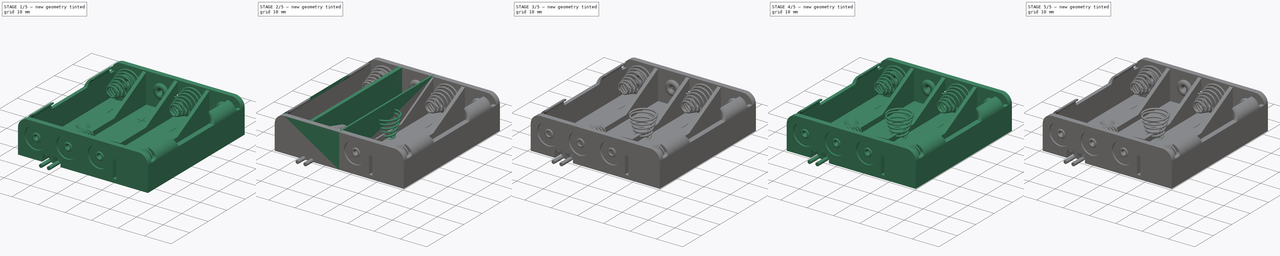
[diagram: build sequence overview — one tinted view per stage of 5, left to right]
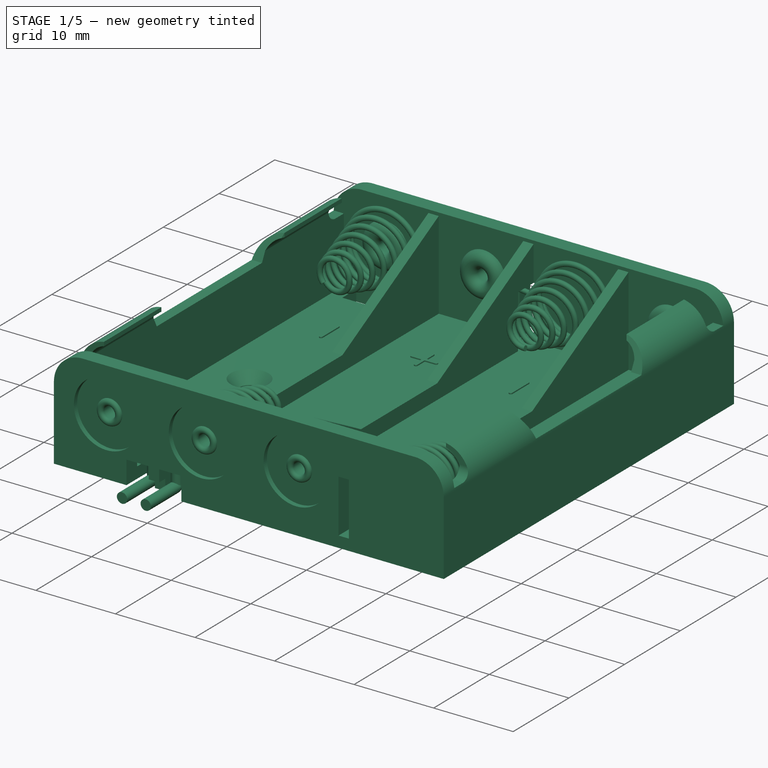
[diagram: stage 1 of 5 — iso view after this stage's code; geometry added in this stage tinted green]
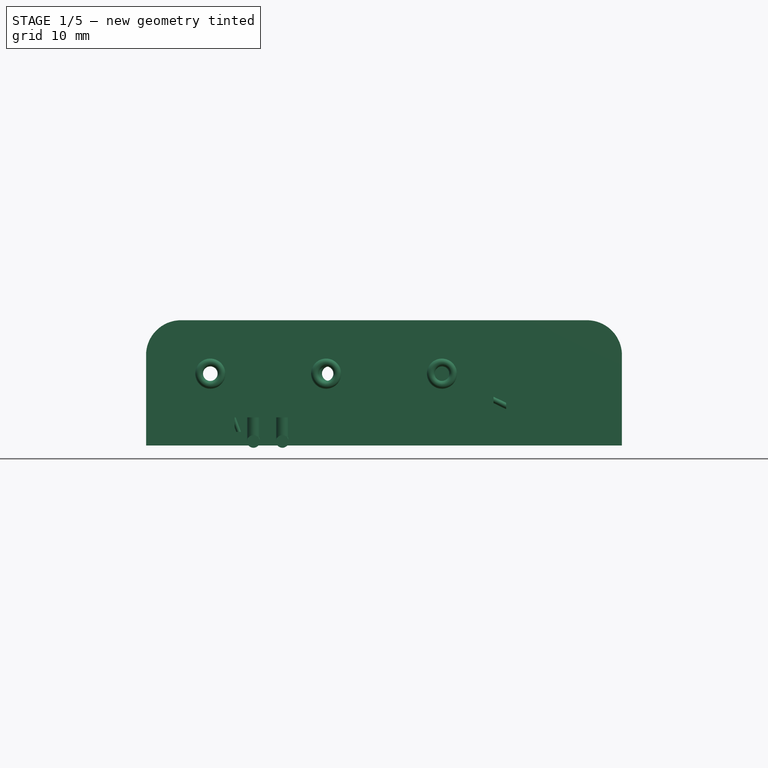
[diagram: stage 1 of 5 — front view after this stage's code; geometry added in this stage tinted green]
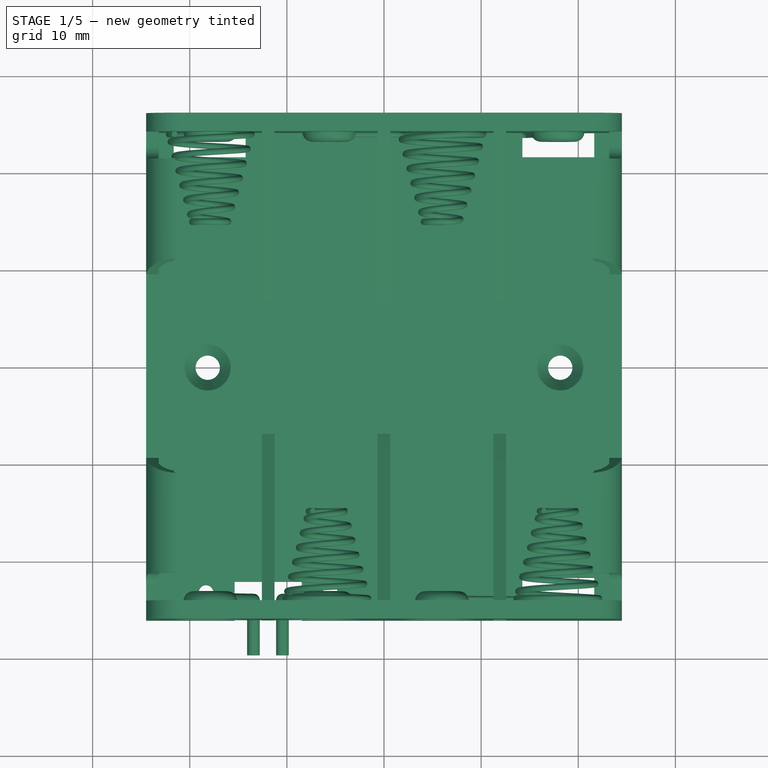
[diagram: stage 1 of 5 — top view after this stage's code; geometry added in this stage tinted green]
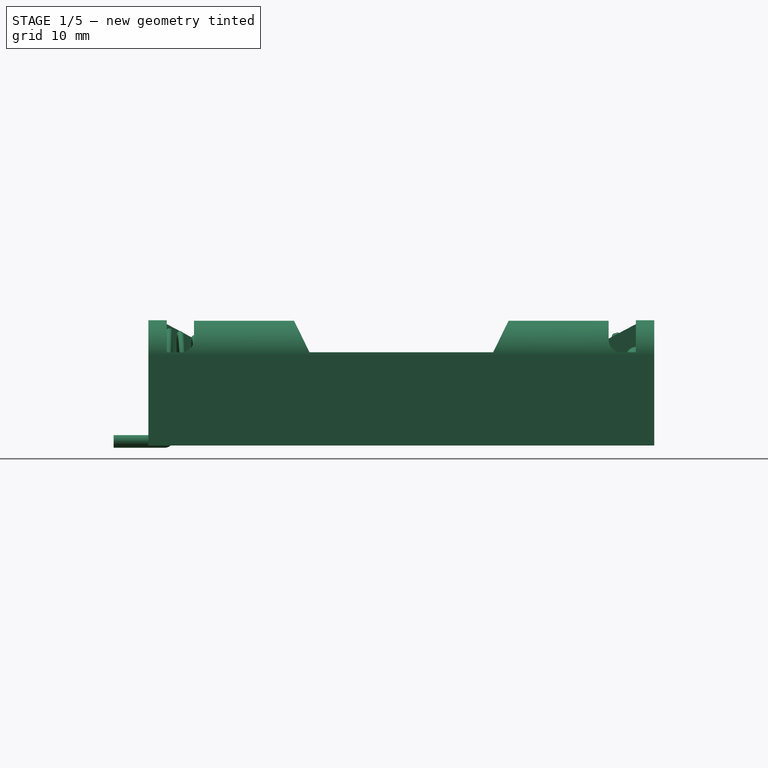
[diagram: stage 1 of 5 — right view after this stage's code; geometry added in this stage tinted green]
FCSTD DOCUMENT  (FreeCAD 0.14R3702 (Git))
Label: battery-holder-4-AAA
License: CC-BY 3.0
LicenseURL: http://creativecommons.org/licenses/by/3.0/
objects: Sketcher::SketchObject×39, Part::Feature×33, PartDesign::Pocket×19, App::DocumentObjectGroup×6, Part::Sweep×6, PartDesign::Pad×4, Part::MultiFuse×4, Part::Compound×4, Part::Mirroring×2, PartDesign::Revolution×2, Part::Loft×1, Part::Cut×1
note: 140 computed .brp shape members not serialized (recipe doc carries the construction recipe); baked Part::Feature solids carry a one-line shape summary decoded from their .brp

FEATURE [App::DocumentObjectGroup] Group002  label="contacts"
  Group = -> [Revolution,Revolution001001001001003]
FEATURE [Part::Feature] Revolution001001001001003001  label="front-contact-1"
  Placement = pos=(-17.8875,-24.15,7.4) rot=(0,0,1;0rad)
  shape: bbox 5.953 x 1.71 x 5.953 mm, 2 faces (baked)
FEATURE [Part::Compound] Compound  label="back-contacts"
  Links = -> [Revolution001,Revolution001001,Revolution001001001,Revolution001001001001,Revolution001001001001001,Revolution001001001001002]
FEATURE [Part::Feature] Revolution001001001001003001001  label="front-contact-002"
  Placement = pos=(5.9625,-24.15,7.4) rot=(0,0,1;0rad)
  shape: bbox 5.953 x 1.71 x 5.953 mm, 2 faces (baked)
FEATURE [Part::Feature] Revolution001001001001003001002  label="front-contact-003"
  Placement = pos=(17.8875,24.15,7.4) rot=(1,0,0;3.14159rad)
  shape: bbox 5.953 x 1.71 x 5.953 mm, 2 faces (baked)
FEATURE [Part::Feature] Revolution001001001001003001003  label="front-contact-004"
  Placement = pos=(-5.6375,24.15,7.4) rot=(1,0,0;3.14159rad)
  shape: bbox 5.953 x 1.71 x 5.953 mm, 2 faces (baked)
FEATURE [Part::Feature] Revolution001001001001003001004  label="front-contact-005"
  Placement = pos=(-5.9625,-24.15,7.4) rot=(0,0,1;0rad)
  shape: bbox 5.953 x 1.71 x 5.953 mm, 2 faces (baked)
FEATURE [Part::Feature] Revolution001001001001003001003001  label="front-contact-006"
  Placement = pos=(-17.8875,24.15,7.4) rot=(1,0,0;3.14159rad)
  shape: bbox 5.953 x 1.71 x 5.953 mm, 2 faces (baked)
FEATURE [Part::Compound] Compound001  label="Front-contacts"
  Links = -> [Revolution001001001001003001,Revolution001001001001003001001,Revolution001001001001003001002,Revolution001001001001003001003,Revolution001001001001003001004,Revolution001001001001003001003001]
FEATURE [App::DocumentObjectGroup] Group004  label="spring-src"
  Group = -> [Wire,Sketch027,Sweep001]
FEATURE [Part::Feature] Sweep001001  label="spring-1"
  Placement = pos=(-17.9,14.9,7.5) rot=(-1,0,0;1.5708rad)
  shape: bbox 11.66 x 9.646 x 11.43 mm, 5 faces (baked)
FEATURE [Part::Feature] Sweep001001001  label="spring-2"
  Placement = pos=(5.95,14.9,7.5) rot=(-0.805306,-0.419215,-0.419215;1.78566rad)
  shape: bbox 11.92 x 9.646 x 11.4 mm, 5 faces (baked)
FEATURE [Part::Feature] Sweep001001002  label="spring-3"
  Placement = pos=(-5.9,-14.9,7.5) rot=(1,0,0;1.5708rad)
  shape: bbox 11.66 x 9.646 x 11.43 mm, 5 faces (baked)
FEATURE [Part::Feature] Sweep001001002001  label="spring-4"
  Placement = pos=(17.9,-14.9,7.5) rot=(1,0,0;1.5708rad)
  shape: bbox 11.66 x 9.646 x 11.43 mm, 5 faces (baked)
FEATURE [Part::Compound] Compound002  label="Springs"
  Links = -> [Sweep001001,Sweep001001002,Sweep001001001,Sweep001001002001]
FEATURE [Sketcher::SketchObject] Sketch033  label="wire-3-path-sketch"
  Placement = pos=(0.25,23.9,0) rot=(1,0,0;1.5708rad)
  sketch-geometry (3):
    g0: LineSegment StartX=2.17808 StartY=5.14987 StartZ=0 EndX=1.54283 EndY=6.29504 EndZ=0
    g1: ArcOfCircle CenterX=0.555906 CenterY=5.74757 CenterZ=0 NormalX=0 NormalY=0 NormalZ=1 Radius=1.1286 StartAngle=0.50646 EndAngle=1.46079
    g2: LineSegment StartX=0.679808 StartY=6.86935 StartZ=0 EndX=-3.85922 EndY=7.37069 EndZ=0
  constraints (4):
    c: Coincident(g2,g1)
    c: Tangent(g2,g1)
    c: Coincident(g1,g0)
    c: Tangent(g1,g0)
FEATURE [Sketcher::SketchObject] Sketch034  label="wire-3-section-sketch"
  Placement = pos=(5.94756,14.9,7.50523) rot=(-1.3e-05,-1,-4e-06;0.436335rad)
  Support = -> Sweep001001001 [Face4]
  sketch-geometry (1):
    g0: Circle CenterX=-4.24157 CenterY=8.99933 CenterZ=0 NormalX=0 NormalY=0 NormalZ=1 Radius=0.3
  constraints (1):
    c: Radius(g0) = 0.3
FEATURE [Part::Sweep] Sweep001001002003  label="wire-3-final"
  Frenet = false
  Sections = -> [Sketch034]
  Solid = true
  Spine = -> Sketch033
  Transition = 1
FEATURE [Sketcher::SketchObject] Sketch035  label="black-wire-path-1-sketch"
  Placement = pos=(0,-24,0) rot=(1,0,0;1.5708rad)
  sketch-geometry (3):
    g0: LineSegment StartX=-7.8288 StartY=7.2478 StartZ=0 EndX=-10.1683 EndY=4.90829 EndZ=0
    g1: LineSegment StartX=-10.4614 StartY=4.20073 StartZ=0 EndX=-10.4614 EndY=0.819755 EndZ=0
    g2: ArcOfCircle CenterX=-9.46075 CenterY=4.20073 CenterZ=0 NormalX=0 NormalY=0 NormalZ=1 Radius=1.00063 StartAngle=2.35619 EndAngle=3.14159
  constraints (4):
    c: Vertical(g1)
    c: Angle(g0,g-1) = 2.35619
    c: Tangent(g0,g2)
    c: Tangent(g1,g2)
FEATURE [Sketcher::SketchObject] Sketch036  label="black-wire-path-2-sketch"
  Placement = pos=(-10.4614,-0.000383377,-0.0141385) rot=(0.57735,0.57735,0.57735;2.0944rad)
  sketch-geometry (3):
    g0: LineSegment StartX=-24.3996 StartY=0.433894 StartZ=0 EndX=-29.6174 EndY=0.433894 EndZ=0
    g1: ArcOfCircle CenterX=-24.3996 CenterY=0.833894 CenterZ=0 NormalX=0 NormalY=0 NormalZ=1 Radius=0.4 StartAngle=4.71239 EndAngle=6.28319
    g2: LineSegment [constr] StartX=-24.3996 StartY=0.833894 StartZ=0 EndX=-23.9996 EndY=0.833894 EndZ=0
  constraints (7):
    c: Horizontal(g0)
    c: Coincident(g1,g0)
    c: Coincident(g2,g1)
    c: Coincident(g2,g1)
    c: Horizontal(g2)
    c: Tangent(g1,g0)
    c: Radius(g1) = 0.4
FEATURE [Sketcher::SketchObject] Sketch037  label="black-wirte-section-1-sketch"
  Placement = pos=(-10.4614,-29.6178,0.419755) rot=(1,0,0;1.5708rad)
  sketch-geometry (1):
    g0: Circle CenterX=0 CenterY=0 CenterZ=0 NormalX=0 NormalY=0 NormalZ=1 Radius=0.65
  constraints (2):
    c: Coincident(g0,g-1)
    c: Radius(g0) = 0.65
FEATURE [Part::Sweep] Sweep001001002004  label="black-wire-1"
  Frenet = false
  Sections = -> [Sketch037]
  Solid = true
  Spine = -> Sketch036 [Edge2,Edge1]
  Transition = 1
FEATURE [Sketcher::SketchObject] Sketch038  label="back-wire-section-2-sketch"
  Placement = pos=(-10.4614,-24,0.819755) rot=(0,0,1;0rad)
  sketch-geometry (1):
    g0: Circle CenterX=0 CenterY=0 CenterZ=0 NormalX=0 NormalY=0 NormalZ=1 Radius=0.65
  constraints (2):
    c: Coincident(g0,g-1)
    c: Radius(g0) = 0.65
FEATURE [Part::Sweep] Sweep001001002005  label="black-wire-2"
  Frenet = false
  Sections = -> [Sketch038]
  Solid = true
  Spine = -> Sketch035
  Transition = 1
FEATURE [Part::MultiFuse] Fusion002002  label="black-wire-final"
  Shapes = -> [Sweep001001002004,Sweep001001002005]
FEATURE [Part::Mirroring] Part__Mirroring001  label="red-wire-final"
  Base = (0,0,0)
  Normal = (1,0,0)
  Placement = pos=(-23.9,0,0) rot=(0,0,1;0rad)
  Source = -> Fusion002002
FEATURE [App::DocumentObjectGroup] Group005  label="wires-src"
  Group = -> [Sketch029,Sweep,Sketch031,Sweep001001002002,Sketch033,Sweep001001002003,Sketch035,Sketch036,Sweep001001002004,Sweep001001002005,Fusion002002,Part__Mirroring001]
FEATURE [Part::Feature] Sweep001001002006  label="wire-1"
  Placement = pos=(0,-0.25,0) rot=(0,0,1;0rad)
  shape: bbox 33.95 x 0.5 x 5.982 mm, 7 faces (baked)
FEATURE [Part::Feature] Sweep001001002002001  label="wire-2"
  Placement = pos=(0.12,0.25,0) rot=(0,0,1;0rad)
  shape: bbox 7.17 x 0.6 x 3.202 mm, 5 faces (baked)
FEATURE [Part::Feature] Sweep001001002003001  label="wire-3"
  shape: bbox 6.355 x 0.6 x 2.637 mm, 5 faces (baked)
FEATURE [Part::Feature] Fusion002002001  label="black-wire"
  shape: bbox 3.878 x 6.268 x 7.938 mm, 12 faces, 3 solids (baked)
FEATURE [Part::Feature] Part__Mirroring001001  label="red-wire"
  Placement = pos=(-23.9,0,0) rot=(0,0,1;0rad)
  shape: bbox 3.878 x 6.268 x 7.938 mm, 12 faces, 3 solids (baked)
FEATURE [Part::Compound] Compound003
  Links = -> [Fusion002001,Compound,Compound001,Compound002,Sweep001001002006,Sweep001001002002001,Sweep001001002003001,Fusion002002001,Part__Mirroring001001]
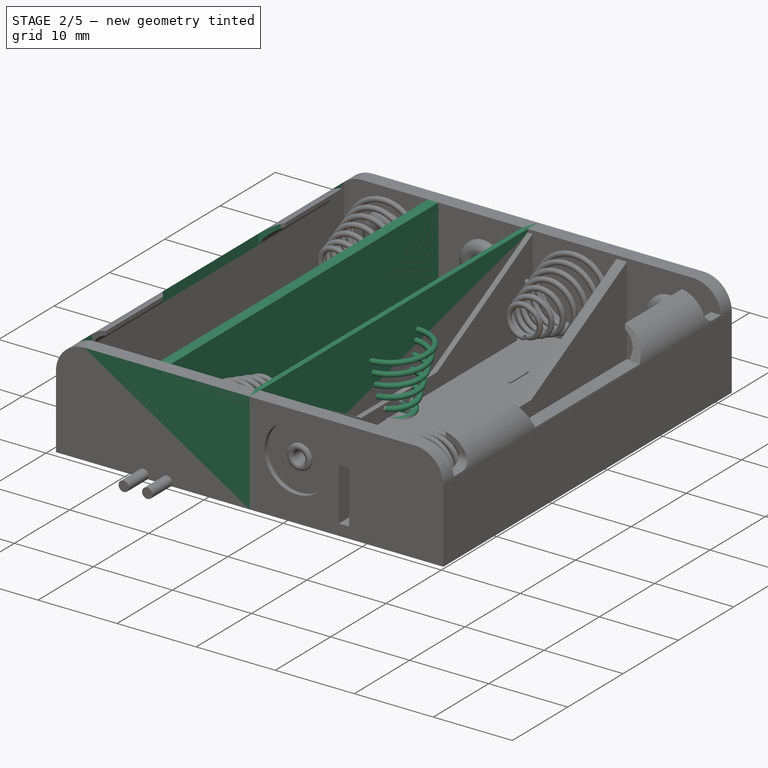
[diagram: stage 2 of 5 — iso view after this stage's code; geometry added in this stage tinted green]
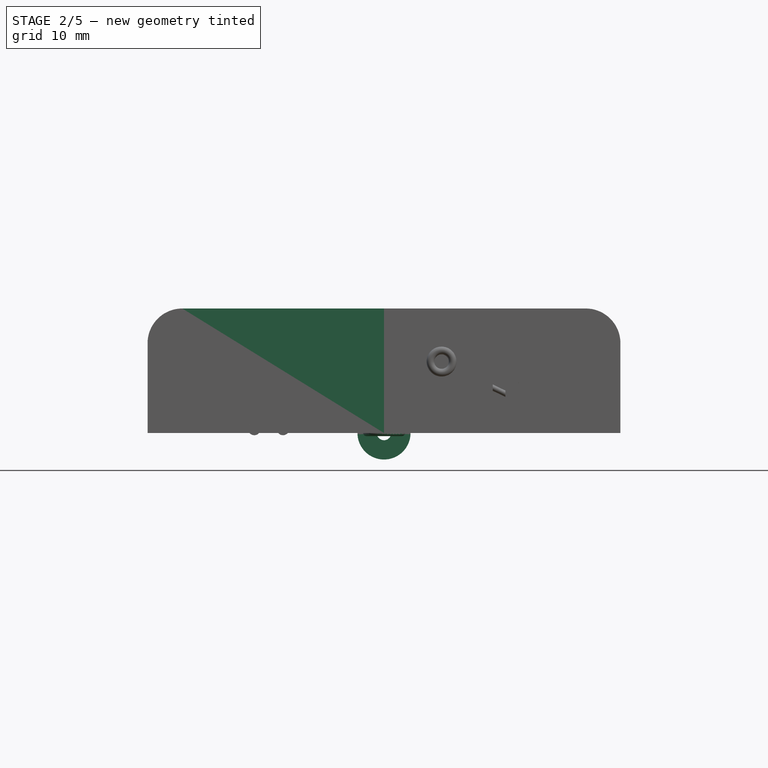
[diagram: stage 2 of 5 — front view after this stage's code; geometry added in this stage tinted green]
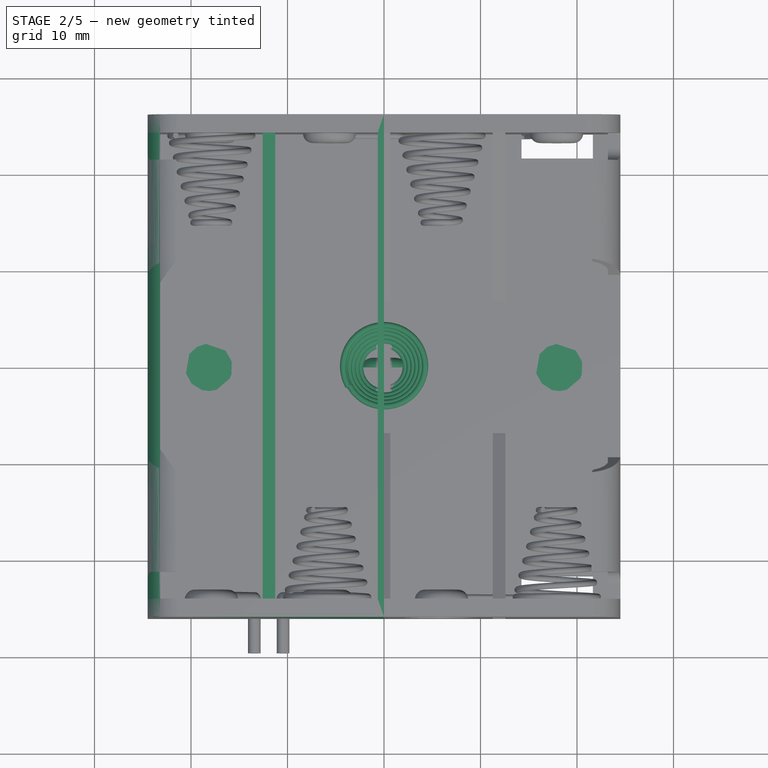
[diagram: stage 2 of 5 — top view after this stage's code; geometry added in this stage tinted green]
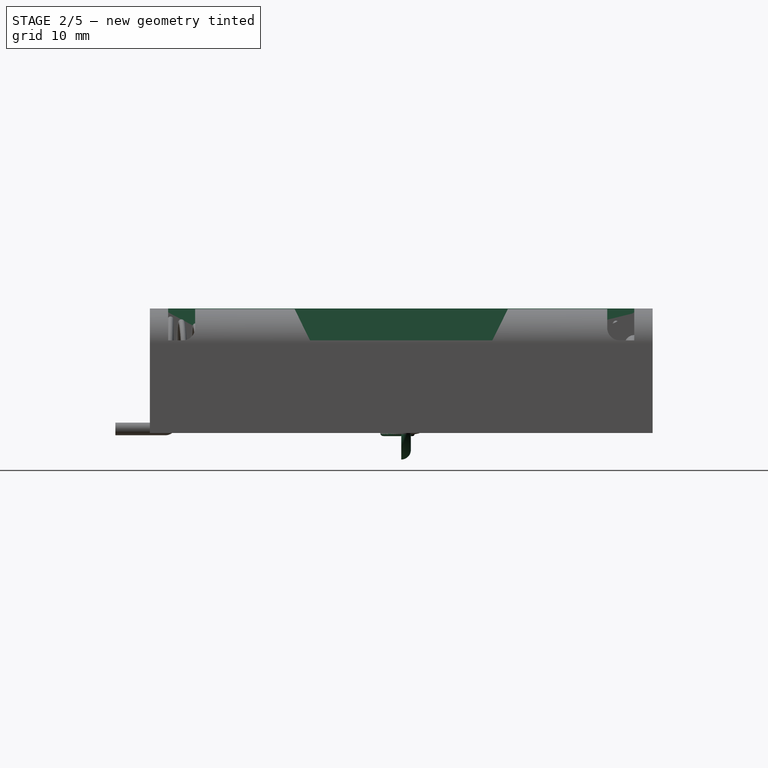
[diagram: stage 2 of 5 — right view after this stage's code; geometry added in this stage tinted green]
FEATURE [Sketcher::SketchObject] Sketch  label="pack-body-1-sketch"
  Placement = pos=(0,0,0) rot=(1,0,0;1.5708rad)
  sketch-geometry (5):
    g0: LineSegment StartX=-24.5 StartY=9.3 StartZ=0 EndX=-24.5 EndY=0 EndZ=0
    g1: LineSegment StartX=-24.5 StartY=0 StartZ=0 EndX=0 EndY=0 EndZ=0
    g2: LineSegment StartX=0 StartY=0 StartZ=0 EndX=0 EndY=12.9 EndZ=0
    g3: LineSegment StartX=0 StartY=12.9 StartZ=0 EndX=-20.9 EndY=12.9 EndZ=0
    g4: ArcOfCircle CenterX=-20.9 CenterY=9.3 CenterZ=0 NormalX=0 NormalY=0 NormalZ=1 Radius=3.6 StartAngle=1.5708 EndAngle=3.14159
  constraints (14):
    c: PointOnObject(g0,g-1)
    c: Vertical(g0)
    c: Coincident(g0,g1)
    c: Horizontal(g1)
    c: Coincident(g1,g2)
    c: Vertical(g2)
    c: Coincident(g2,g3)
    c: Horizontal(g3)
    c: Tangent(g0,g4)
    c: Tangent(g3,g4)
    c: Coincident(g1,g-1)
    c: DistanceX(g1) = 24.5
    c: DistanceY(g2) = 12.9
    c: Radius(g4) = 3.6
FEATURE [PartDesign::Pad] Pad  label="pack-body-1"
  Length = 52.1
  Length2 = 100
  Midplane = true
  Placement = pos=(0,0,0) rot=(1,0,0;1.5708rad)
  Sketch = -> Sketch
  Type = 0
FEATURE [Sketcher::SketchObject] Sketch001  label="pack-body-2-sketch"
  ExternalGeometry = -> [Pad]
  Placement = pos=(0,0,12.9) rot=(0,0,1;3.14159rad)
  Support = -> Pad [Face4]
  sketch-geometry (16):
    g0: LineSegment StartX=0.65 StartY=24.15 StartZ=0 EndX=11.275 EndY=24.15 EndZ=0
    g1: LineSegment StartX=11.275 StartY=24.15 StartZ=0 EndX=11.275 EndY=-24.15 EndZ=0
    g2: LineSegment StartX=11.275 StartY=-24.15 StartZ=0 EndX=0.65 EndY=-24.15 EndZ=0
    g3: LineSegment StartX=0.65 StartY=-24.15 StartZ=0 EndX=0.65 EndY=24.15 EndZ=0
    g4: LineSegment StartX=12.575 StartY=24.15 StartZ=0 EndX=23.2 EndY=24.15 EndZ=0
    g5: LineSegment StartX=23.2 StartY=24.15 StartZ=0 EndX=23.2 EndY=21.35 EndZ=0
    g6: LineSegment StartX=23.2 StartY=-24.15 StartZ=0 EndX=12.575 EndY=-24.15 EndZ=0
    g7: LineSegment StartX=12.575 StartY=-24.15 StartZ=0 EndX=12.575 EndY=24.15 EndZ=0
    g8: LineSegment StartX=23.2 StartY=21.35 StartZ=0 EndX=21.5 EndY=21.35 EndZ=0
    g9: LineSegment StartX=21.5 StartY=21.35 StartZ=0 EndX=21.5 EndY=11.05 EndZ=0
    g10: LineSegment StartX=21.5 StartY=11.05 StartZ=0 EndX=23.2 EndY=8.65 EndZ=0
    g11: LineSegment StartX=23.2 StartY=8.65 StartZ=0 EndX=23.2 EndY=-8.65 EndZ=0
    g12: LineSegment StartX=23.2 StartY=-21.35 StartZ=0 EndX=21.5 EndY=-21.35 EndZ=0
    g13: LineSegment StartX=21.5 StartY=-21.35 StartZ=0 EndX=21.5 EndY=-11.05 EndZ=0
    g14: LineSegment StartX=21.5 StartY=-11.05 StartZ=0 EndX=23.2 EndY=-8.65 EndZ=0
    g15: LineSegment StartX=23.2 StartY=-21.35 StartZ=0 EndX=23.2 EndY=-24.15 EndZ=0
  constraints (45):
    c: Coincident(g0,g1)
    c: Coincident(g1,g2)
    c: Coincident(g2,g3)
    c: Coincident(g3,g0)
    c: Horizontal(g0)
    c: Horizontal(g2)
    c: Vertical(g1)
    c: Vertical(g3)
    c: Coincident(g4,g5)
    c: Coincident(g15,g6)
    c: Coincident(g6,g7)
    c: Coincident(g7,g4)
    c: Horizontal(g4)
    c: Horizontal(g6)
    c: Vertical(g5)
    c: Vertical(g7)
    c: DistanceX(g-3,g0) = 0.65
    c: DistanceY(g-3,g0) = -1.9
    c: Symmetric(g0,g1,g-1)
    c: DistanceX(g4,g-4) = 1.3
    c: PointOnObject(g4,g0)
    c: Symmetric(g4,g6,g-1)
    c: Equal(g0,g4)
    c: DistanceX(g0,g4) = 1.3
    c: Horizontal(g8)
    c: Vertical(g9)
    c: Coincident(g9,g8)
    c: DistanceY(g9) = -10.3
    c: Coincident(g10,g9)
    c: Coincident(g5,g8)
    c: Coincident(g11,g10)
    c: Tangent(g5,g11)
    c: DistanceY(g5,g10) = -12.7
    c: DistanceX(g8,g5) = 1.7
    c: DistanceY(g4,g5) = -2.8
    c: Horizontal(g12)
    c: Coincident(g12,g13)
    c: Vertical(g13)
    c: Coincident(g13,g14)
    c: Coincident(g11,g14)
    c: Coincident(g15,g12)
    c: Tangent(g11,g15)
    c: Symmetric(g11,g10,g-1)
    c: Symmetric(g13,g9,g-1)
    c: Symmetric(g12,g8,g-1)
FEATURE [PartDesign::Pocket] Pocket  label="pack-body-2"
  Length = 11.5
  Placement = pos=(0,0,0) rot=(1,0,0;1.5708rad)
  Sketch = -> Sketch001
  Type = 0
FEATURE [Sketcher::SketchObject] Sketch002  label="pack-body-3-sketch"
  ExternalGeometry = -> [Pocket]
  Placement = pos=(0,-21.35,0) rot=(1,0,0;1.5708rad)
  Support = -> Pocket [Face9]
  sketch-geometry (8):
    g0: LineSegment [constr] StartX=-23.2 StartY=12.0695 StartZ=0 EndX=-23.2 EndY=10.7695 EndZ=0
    g1: LineSegment [constr] StartX=-21.5 StartY=12.8496 StartZ=0 EndX=-21.5 EndY=12.3496 EndZ=0
    g2: ArcOfCircle CenterX=-20.9 CenterY=9.9996 CenterZ=0 NormalX=0 NormalY=0 NormalZ=1 Radius=2.42543 StartAngle=1.82077 EndAngle=2.81859
    g3: LineSegment [constr] StartX=-20.9 StartY=9.9996 StartZ=0 EndX=-20.9 EndY=9.3 EndZ=0
    g4: LineSegment StartX=-23.2 StartY=10.7695 StartZ=0 EndX=-23.2 EndY=1.4 EndZ=0
    g5: LineSegment StartX=-21.5 StartY=12.3496 StartZ=0 EndX=-20.5 EndY=12.3496 EndZ=0
    g6: LineSegment StartX=-20.5 StartY=12.3496 StartZ=0 EndX=-20.5 EndY=1.4 EndZ=0
    g7: LineSegment StartX=-20.5 StartY=1.4 StartZ=0 EndX=-23.2 EndY=1.4 EndZ=0
  constraints (22):
    c: Coincident(g0,g-4)
    c: PointOnObject(g0,g-4)
    c: DistanceY(g0,g0) = 1.3
    c: Coincident(g1,g-3)
    c: Vertical(g1)
    c: DistanceY(g1) = -0.5
    c: Coincident(g2,g0)
    c: Coincident(g2,g1)
    c: Coincident(g3,g-3)
    c: Vertical(g3)
    c: Coincident(g2,g3)
    c: Vertical(g4)
    c: Coincident(g4,g0)
    c: Coincident(g4,g-4)
    c: Horizontal(g5)
    c: Coincident(g5,g1)
    c: DistanceX(g5) = 1
    c: Coincident(g5,g6)
    c: Vertical(g6)
    c: Coincident(g6,g7)
    c: Coincident(g7,g4)
    c: Horizontal(g7)
FEATURE [PartDesign::Pocket] Pocket001  label="pack-body-3"
  Length = 45.3
  Placement = pos=(0,0,0) rot=(1,0,0;1.5708rad)
  Sketch = -> Sketch002
  Type = 0
FEATURE [App::DocumentObjectGroup] Group  label="countersink-cutter-src"
  Group = -> [Loft,Pad001]
FEATURE [Part::Feature] Pad001001  label="countersink-cutter-left"
  Placement = pos=(-18.15,0,0.1) rot=(0,0,1;0rad)
  shape: bbox 4.9 x 4.9 x 1.5 mm, 4 faces (baked)
FEATURE [Part::Feature] Pad001002  label="countersink-cutter-right"
  Placement = pos=(18.15,0,0.1) rot=(0,0,1;0rad)
  shape: bbox 4.9 x 4.9 x 1.5 mm, 4 faces (baked)
FEATURE [Part::MultiFuse] Fusion001  label="countersink-left-right"
  Shapes = -> [Pad001001,Pad001002]
FEATURE [Part::Feature] Revolution001  label="back-contact-1"
  Placement = pos=(-17.8875,-25.45,7.4) rot=(1,0,0;3.14159rad)
  shape: bbox 3.355 x 0.684 x 3.355 mm, 2 faces (baked)
FEATURE [App::DocumentObjectGroup] Group003  label="battery-pack-body-src"
  Group = -> [Pad,Pocket,Pocket001,Pocket002,Fusion,Pocket004,Pocket005,Pocket006,Pocket007,Pocket008,Pocket009,Pocket010,Pocket011,Pocket012,Pocket013,Pocket014,Group,Cut,Group001,Fusion002]
FEATURE [Part::Feature] Fusion002001  label="battery-pack-body"
  shape: bbox 49 x 52.1 x 12.9 mm, 213 faces (baked)
FEATURE [Part::Feature] Revolution001001  label="back-contact-2"
  Placement = pos=(5.9625,-25.45,7.4) rot=(1,0,0;3.14159rad)
  shape: bbox 3.355 x 0.684 x 3.355 mm, 2 faces (baked)
FEATURE [Part::Feature] Revolution001001001  label="back-contact-3"
  Placement = pos=(-5.9625,-25.45,7.4) rot=(1,0,0;3.14159rad)
  shape: bbox 3.355 x 0.684 x 3.355 mm, 2 faces (baked)
FEATURE [Part::Feature] Revolution001001001001  label="back-contact-004"
  Placement = pos=(17.8875,25.45,7.4) rot=(0,0,1;0rad)
  shape: bbox 3.355 x 0.684 x 3.355 mm, 2 faces (baked)
FEATURE [Part::Feature] Revolution001001001001001  label="back-contact-005"
  Placement = pos=(-17.8875,25.45,7.4) rot=(0,0,1;0rad)
  shape: bbox 3.355 x 0.684 x 3.355 mm, 2 faces (baked)
FEATURE [Part::Feature] Revolution001001001001002  label="back-contact-006"
  Placement = pos=(-5.6375,25.45,7.4) rot=(0,0,1;0rad)
  shape: bbox 3.355 x 0.684 x 3.355 mm, 2 faces (baked)
FEATURE [Sketcher::SketchObject] Sketch026  label="front-contact-sketch"
  sketch-geometry (2):
    g0: ArcOfCircle CenterX=1.75 CenterY=0 CenterZ=0 NormalX=0 NormalY=0 NormalZ=1 Radius=1 StartAngle=0 EndAngle=3.14159
    g1: LineSegment StartX=0.75 StartY=0 StartZ=0 EndX=2.75 EndY=0 EndZ=0
  constraints (8):
    c: PointOnObject(g0,g-1)
    c: PointOnObject(g0,g-1)
    c: PointOnObject(g0,g-1)
    c: Horizontal(g1)
    c: Coincident(g1,g0)
    c: Coincident(g1,g0)
    c: Radius(g0) = 1
    c: DistanceX(g-1,g0) = 0.75
FEATURE [PartDesign::Revolution] Revolution001001001001003  label="front-contact"
  Angle = 360
  Axis = (0,1,0)
  Base = (0,0,0)
  ReferenceAxis = -> Sketch026 [V_Axis]
  Reversed = true
  Sketch = -> Sketch026
FEATURE [Sketcher::SketchObject] Sketch027  label="Spring-section"
  Placement = pos=(0,0,0) rot=(1,0,0;1.5708rad)
  sketch-geometry (1):
    g0: Circle CenterX=1.85 CenterY=0 CenterZ=0 NormalX=0 NormalY=0 NormalZ=1 Radius=0.32
  constraints (3):
    c: PointOnObject(g0,g-1)
    c: Radius(g0) = 0.32
    c: DistanceX(g-1,g0) = 1.85
FEATURE [Sketcher::SketchObject] Sketch028  label="top-spring-spire-sketch"
  Placement = pos=(0,0,0) rot=(1,0,0;1.5708rad)
  sketch-geometry (1):
    g0: Circle CenterX=1.85 CenterY=0 CenterZ=0 NormalX=0 NormalY=0 NormalZ=1 Radius=0.32
  constraints (3):
    c: PointOnObject(g0,g-1)
    c: Radius(g0) = 0.32
    c: DistanceX(g-1,g0) = 1.85
FEATURE [Part::Feature] Wire
  shape: bbox 9.018 x 8.802 x 9 mm, 0 faces, 0 solids (baked)
FEATURE [Part::Sweep] Sweep001  label="spring-final"
  Frenet = true
  Sections = -> [Sketch028]
  Solid = true
  Spine = -> Wire [Edge3,Edge2,Edge1]
  Transition = 1
FEATURE [Sketcher::SketchObject] Sketch029  label="wire-1-path-sketch"
  ExternalGeometry = -> [Fusion002001]
  Placement = pos=(0,24.15,0) rot=(1,0,0;1.5708rad)
  Support = -> Fusion002001 [Face45]
  sketch-geometry (5):
    g0: LineSegment StartX=-16.756 StartY=6.17863 StartZ=0 EndX=-14.8119 EndY=0.989491 EndZ=0
    g1: LineSegment StartX=16.756 StartY=6.17863 StartZ=0 EndX=14.8119 EndY=0.989491 EndZ=0
    g2: LineSegment StartX=-14.25 StartY=0.6 StartZ=0 EndX=14.25 EndY=0.6 EndZ=0
    g3: ArcOfCircle CenterX=-14.25 CenterY=1.2 CenterZ=0 NormalX=0 NormalY=0 NormalZ=1 Radius=0.6 StartAngle=3.50007 EndAngle=4.71239
    g4: ArcOfCircle CenterX=14.25 CenterY=1.2 CenterZ=0 NormalX=0 NormalY=0 NormalZ=1 Radius=0.6 StartAngle=4.71239 EndAngle=5.92471
  constraints (10):
    c: Horizontal(g2)
    c: Symmetric(g1,g0,g-2)
    c: Tangent(g0,g3)
    c: Tangent(g2,g3)
    c: Tangent(g1,g4)
    c: Tangent(g2,g4)
    c: Equal(g3,g4)
    c: Symmetric(g3,g4,g-2)
    c: Radius(g3) = 0.6
    c: Coincident(g3,g-3)
FEATURE [Sketcher::SketchObject] Sketch030  label="wire-1-section-sketch"
  Placement = pos=(-16.756,24.15,6.17863) rot=(0,0,1;0rad)
  sketch-geometry (1):
    g0: Circle CenterX=0 CenterY=0 CenterZ=0 NormalX=0 NormalY=0 NormalZ=1 Radius=0.25
  constraints (2):
    c: Coincident(g0,g-1)
    c: Radius(g0) = 0.25
FEATURE [Part::Sweep] Sweep  label="wire-1-final"
  Frenet = false
  Placement = pos=(0,-0.25,0) rot=(0,0,1;0rad)
  Sections = -> [Sketch030]
  Solid = true
  Spine = -> Sketch029
  Transition = 1
FEATURE [Sketcher::SketchObject] Sketch031  label="wire-2-path-sketch"
  Placement = pos=(0,-24.15,0) rot=(0,0.707107,0.707107;3.14159rad)
  Support = -> Fusion002001 [Face2]
  sketch-geometry (3):
    g0: LineSegment StartX=-14.1269 StartY=5.34162 StartZ=0 EndX=-13.9677 EndY=5.72324 EndZ=0
    g1: ArcOfCircle CenterX=-13.1345 CenterY=4.92743 CenterZ=0 NormalX=0 NormalY=0 NormalZ=1 Radius=1.07541 StartAngle=2.74623 EndAngle=5.15803
    g2: LineSegment StartX=-12.6709 StartY=3.95705 StartZ=0 EndX=-7.4088 EndY=6.47075 EndZ=0
  constraints (5):
    c: Coincident(g2,g1)
    c: Tangent(g2,g1)
    c: Coincident(g1,g0)
    c: Tangent(g0,g1)
    c: Angle(g-1,g0) = 1.17543
FEATURE [Sketcher::SketchObject] Sketch032  label="wire-2-section-sketch"
  Placement = pos=(17.9029,-14.9,7.495) rot=(0.965926,0,0.258819;3.14159rad)
  Support = -> Sweep001001002001 [Face4]
  sketch-geometry (1):
    g0: Circle CenterX=-4.3621 CenterY=9.2474 CenterZ=0 NormalX=0 NormalY=0 NormalZ=1 Radius=0.3
  constraints (1):
    c: Radius(g0) = 0.3
FEATURE [Part::Sweep] Sweep001001002002  label="wire-2-final"
  Frenet = false
  Placement = pos=(0.12,0.25,0) rot=(0,0,1;0rad)
  Sections = -> [Sketch032]
  Solid = true
  Spine = -> Sketch031
  Transition = 1
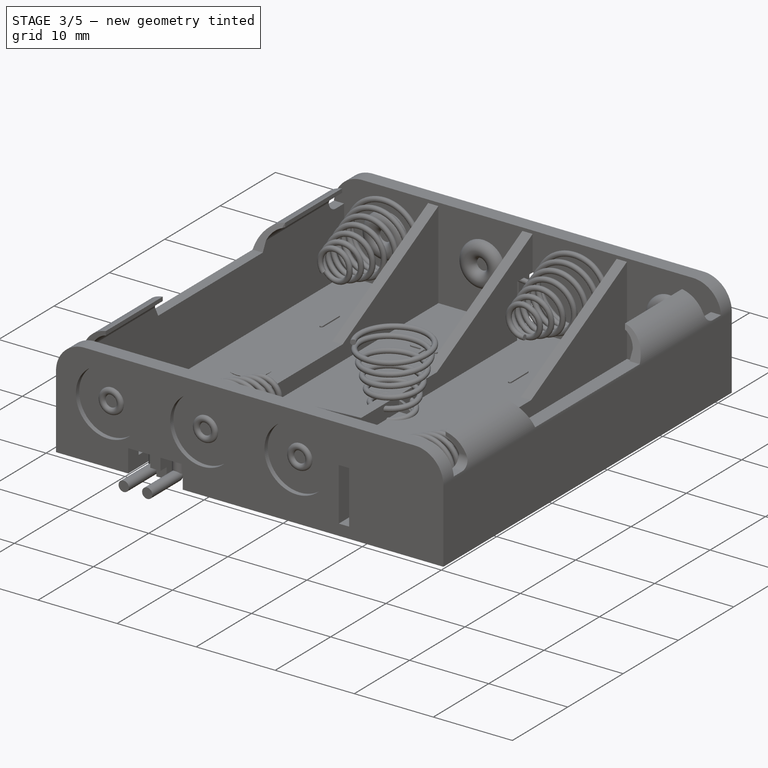
[diagram: stage 3 of 5 — iso view after this stage's code; geometry added in this stage tinted green]
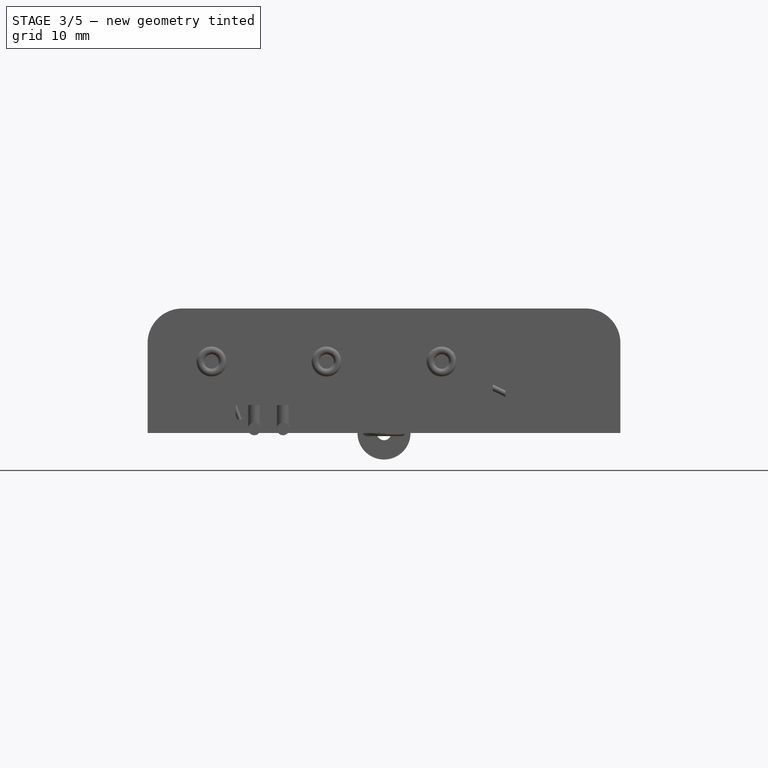
[diagram: stage 3 of 5 — front view after this stage's code; geometry added in this stage tinted green]
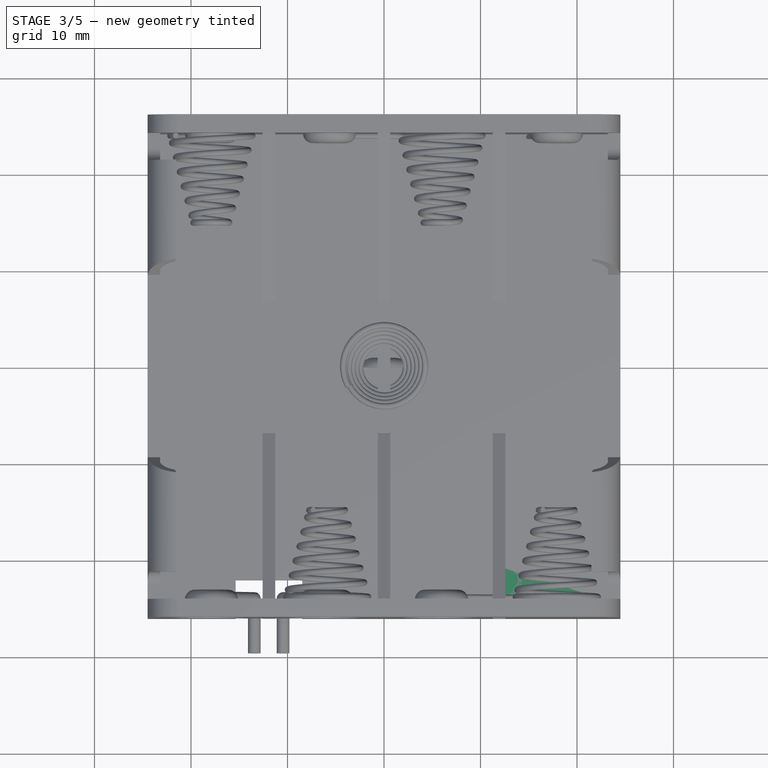
[diagram: stage 3 of 5 — top view after this stage's code; geometry added in this stage tinted green]
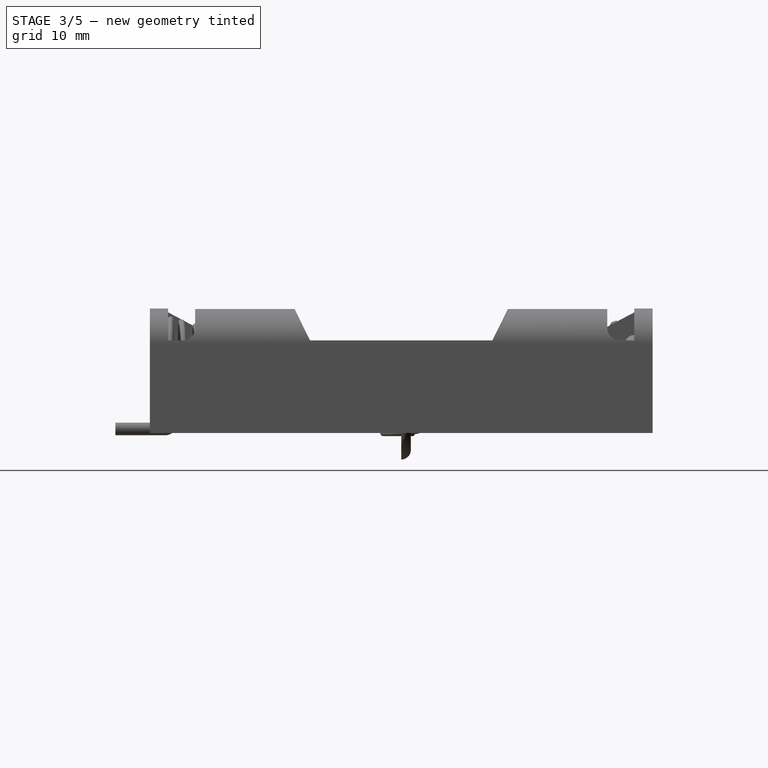
[diagram: stage 3 of 5 — right view after this stage's code; geometry added in this stage tinted green]
FEATURE [Sketcher::SketchObject] Sketch003  label="pack-body-sketch-4"
  ExternalGeometry = -> [Pocket001]
  Placement = pos=(-24.5,0,0) rot=(0.707107,0,-0.707107;3.14159rad)
  Support = -> Pocket001 [Face1]
  sketch-geometry (20):
    g0: LineSegment StartX=-12.9 StartY=24.15 StartZ=0 EndX=-9.6 EndY=24.15 EndZ=0
    g1: LineSegment StartX=-12.8496 StartY=21.35 StartZ=0 EndX=-10.9 EndY=21.35 EndZ=0
    g2: LineSegment StartX=-9.6 StartY=22.65 StartZ=0 EndX=-9.6 EndY=24.15 EndZ=0
    g3: LineSegment StartX=-12.8496 StartY=21.35 StartZ=0 EndX=-13.8496 EndY=21.35 EndZ=0
    g4: LineSegment StartX=-13.8496 StartY=21.35 StartZ=0 EndX=-13.8496 EndY=24.15 EndZ=0
    g5: LineSegment StartX=-13.8496 StartY=24.15 StartZ=0 EndX=-12.9 EndY=24.15 EndZ=0
    g6: LineSegment StartX=-12.8496 StartY=11.05 StartZ=0 EndX=-9.6 EndY=9.45 EndZ=0
    g7: LineSegment StartX=-12.8496 StartY=-11.05 StartZ=0 EndX=-9.6 EndY=-9.45 EndZ=0
    g8: LineSegment StartX=-9.6 StartY=9.45 StartZ=0 EndX=-9.6 EndY=-9.45 EndZ=0
    g9: LineSegment StartX=-12.8496 StartY=-11.05 StartZ=0 EndX=-13.8496 EndY=-11.05 EndZ=0
    g10: LineSegment StartX=-13.8496 StartY=-11.05 StartZ=0 EndX=-13.8496 EndY=11.05 EndZ=0
    g11: LineSegment StartX=-13.8496 StartY=11.05 StartZ=0 EndX=-12.8496 EndY=11.05 EndZ=0
    g12: LineSegment StartX=-12.8496 StartY=-21.35 StartZ=0 EndX=-10.9 EndY=-21.35 EndZ=0
    g13: LineSegment StartX=-9.6 StartY=-22.65 StartZ=0 EndX=-9.6 EndY=-24.15 EndZ=0
    g14: LineSegment StartX=-9.6 StartY=-24.15 StartZ=0 EndX=-12.9 EndY=-24.15 EndZ=0
    g15: LineSegment StartX=-12.9 StartY=-24.15 StartZ=0 EndX=-13.9 EndY=-24.15 EndZ=0
    g16: LineSegment StartX=-13.9 StartY=-24.15 StartZ=0 EndX=-13.9 EndY=-21.35 EndZ=0
    g17: LineSegment StartX=-13.9 StartY=-21.35 StartZ=0 EndX=-12.8496 EndY=-21.35 EndZ=0
    g18: ArcOfCircle CenterX=-10.9 CenterY=22.65 CenterZ=0 NormalX=0 NormalY=0 NormalZ=1 Radius=1.3 StartAngle=4.71239 EndAngle=6.28319
    g19: ArcOfCircle CenterX=-10.9 CenterY=-22.65 CenterZ=0 NormalX=0 NormalY=0 NormalZ=1 Radius=1.3 StartAngle=0 EndAngle=1.5708
  constraints (52):
    c: Coincident(g0,g-3)
    c: Horizontal(g0)
    c: DistanceX(g0) = 3.3
    c: Coincident(g1,g-4)
    c: Horizontal(g1)
    c: Coincident(g2,g0)
    c: Vertical(g2)
    c: Coincident(g3,g1)
    c: Horizontal(g3)
    c: DistanceX(g3) = -1
    c: Coincident(g3,g4)
    c: Vertical(g4)
    c: Coincident(g4,g5)
    c: Coincident(g5,g0)
    c: Horizontal(g5)
    c: Coincident(g6,g-4)
    c: PointOnObject(g6,g2)
    c: Coincident(g7,g-5)
    c: Coincident(g8,g6)
    c: Vertical(g8)
    c: Coincident(g7,g8)
    c: Coincident(g9,g7)
    c: Horizontal(g9)
    c: DistanceX(g9) = -1
    c: Coincident(g10,g9)
    c: Vertical(g10)
    c: Coincident(g11,g10)
    c: Coincident(g11,g6)
    c: Horizontal(g11)
    c: Coincident(g12,g-5)
    c: Horizontal(g12)
    c: Vertical(g13)
    c: Coincident(g13,g14)
    c: Horizontal(g14)
    c: Coincident(g14,g15)
    c: Horizontal(g15)
    c: Coincident(g15,g16)
    c: Vertical(g16)
    c: Coincident(g16,g17)
    c: Coincident(g17,g12)
    c: Horizontal(g17)
    c: Coincident(g-6,g14)
    c: DistanceX(g15) = -1
    c: DistanceY(g6,g-3) = 16.6
    c: Symmetric(g7,g6,g-1)
    c: Tangent(g1,g18)
    c: Tangent(g2,g18)
    c: Radius(g18) = 1.3
    c: Tangent(g12,g19)
    c: Tangent(g13,g19)
    c: Equal(g19,g18)
    c: PointOnObject(g13,g8)
FEATURE [PartDesign::Pocket] Pocket002  label="pack-body-4"
  Length = 6
  Placement = pos=(0,0,0) rot=(1,0,0;1.5708rad)
  Sketch = -> Sketch003
  Type = 0
FEATURE [Sketcher::SketchObject] Sketch004  label="pack-body-5-sketch"
  ExternalGeometry = -> [Pocket002]
  Placement = pos=(0,0,0) rot=(0.707107,0,0.707107;3.14159rad)
  Support = -> Pocket002 [Face16]
  sketch-geometry (6):
    g0: LineSegment StartX=12.9 StartY=24.15 StartZ=0 EndX=12.5 EndY=24.15 EndZ=0
    g1: LineSegment StartX=3.3 StartY=-6.85 StartZ=0 EndX=3.3 EndY=6.85 EndZ=0
    g2: LineSegment StartX=12.5 StartY=24.15 StartZ=0 EndX=3.3 EndY=6.85 EndZ=0
    g3: LineSegment StartX=12.9 StartY=-24.15 StartZ=0 EndX=12.5 EndY=-24.15 EndZ=0
    g4: LineSegment StartX=12.5 StartY=-24.15 StartZ=0 EndX=3.3 EndY=-6.85 EndZ=0
    g5: LineSegment StartX=12.9 StartY=24.15 StartZ=0 EndX=12.9 EndY=-24.15 EndZ=0
  constraints (17):
    c: Coincident(g0,g-3)
    c: Horizontal(g0)
    c: DistanceX(g0) = -0.4
    c: Vertical(g1)
    c: DistanceX(g1,g-4) = -1.9
    c: DistanceY(g-4,g1) = -17.3
    c: Symmetric(g1,g1,g-1)
    c: Coincident(g2,g0)
    c: Coincident(g2,g1)
    c: Coincident(g3,g4)
    c: Horizontal(g3)
    c: Coincident(g3,g-3)
    c: Symmetric(g3,g0,g-1)
    c: Symmetric(g4,g1,g-1)
    c: Vertical(g5)
    c: Coincident(g5,g3)
    c: Coincident(g5,g0)
FEATURE [PartDesign::Pocket] Pocket003  label="pack-body-left"
  Length = 15
  Placement = pos=(0,0,0) rot=(1,0,0;1.5708rad)
  Sketch = -> Sketch004
  Type = 0
FEATURE [Part::Mirroring] Part__Mirroring  label="pack-body-right"
  Base = (0,0,0)
  Normal = (1,0,0)
  Source = -> Pocket003
FEATURE [Part::MultiFuse] Fusion  label="pack-body-left-right"
  Shapes = -> [Part__Mirroring,Pocket003]
FEATURE [Sketcher::SketchObject] Sketch005  label="pack-1-sketch"
  ExternalGeometry = -> [Fusion]
  Placement = pos=(0,-26.05,0) rot=(1,0,0;1.5708rad)
  Support = -> Fusion [Face55]
  sketch-geometry (8):
    g0: LineSegment StartX=-15.375 StartY=2.9 StartZ=0 EndX=-12.575 EndY=2.9 EndZ=0
    g1: LineSegment StartX=-12.575 StartY=2.9 StartZ=0 EndX=-12.575 EndY=0 EndZ=0
    g2: LineSegment StartX=-12.575 StartY=0 StartZ=0 EndX=-15.375 EndY=0 EndZ=0
    g3: LineSegment StartX=-15.375 StartY=0 StartZ=0 EndX=-15.375 EndY=2.9 EndZ=0
    g4: LineSegment StartX=-11.275 StartY=2.9 StartZ=0 EndX=-8.475 EndY=2.9 EndZ=0
    g5: LineSegment StartX=-8.475 StartY=2.9 StartZ=0 EndX=-8.475 EndY=0 EndZ=0
    g6: LineSegment StartX=-8.475 StartY=0 StartZ=0 EndX=-11.275 EndY=0 EndZ=0
    g7: LineSegment StartX=-11.275 StartY=0 StartZ=0 EndX=-11.275 EndY=2.9 EndZ=0
  constraints (24):
    c: Coincident(g0,g1)
    c: Coincident(g1,g2)
    c: Coincident(g2,g3)
    c: Coincident(g3,g0)
    c: Horizontal(g0)
    c: Horizontal(g2)
    c: Vertical(g1)
    c: Vertical(g3)
    c: PointOnObject(g2,g-4)
    c: DistanceY(g1) = -2.9
    c: Coincident(g4,g5)
    c: Coincident(g5,g6)
    c: Coincident(g6,g7)
    c: Coincident(g7,g4)
    c: Horizontal(g4)
    c: Horizontal(g6)
    c: Vertical(g5)
    c: Vertical(g7)
    c: PointOnObject(g6,g-4)
    c: PointOnObject(g4,g0)
    c: Equal(g4,g0)
    c: PointOnObject(g0,g-6)
    c: PointOnObject(g4,g-5)
    c: DistanceX(g4) = 2.8
FEATURE [PartDesign::Pocket] Pocket004  label="pack-1-front"
  Length = 4
  Sketch = -> Sketch005
  Type = 0
FEATURE [Sketcher::SketchObject] Sketch006  label="pack-2-sketch"
  ExternalGeometry = -> [Pocket004]
  Placement = pos=(0,-26.05,0) rot=(1,0,0;1.5708rad)
  Support = -> Pocket004 [Face32]
  sketch-geometry (4):
    g0: LineSegment StartX=-12.575 StartY=1.4 StartZ=0 EndX=-11.275 EndY=1.4 EndZ=0
    g1: LineSegment StartX=-11.275 StartY=1.4 StartZ=0 EndX=-11.275 EndY=0 EndZ=0
    g2: LineSegment StartX=-11.275 StartY=0 StartZ=0 EndX=-12.575 EndY=0 EndZ=0
    g3: LineSegment StartX=-12.575 StartY=0 StartZ=0 EndX=-12.575 EndY=1.4 EndZ=0
  constraints (11):
    c: Coincident(g0,g1)
    c: Coincident(g1,g2)
    c: Coincident(g2,g3)
    c: Coincident(g3,g0)
    c: Horizontal(g0)
    c: Horizontal(g2)
    c: Vertical(g1)
    c: Vertical(g3)
    c: Coincident(g0,g-3)
    c: PointOnObject(g0,g-4)
    c: Coincident(g1,g-4)
FEATURE [PartDesign::Pocket] Pocket005  label="pack-2-front"
  Length = 1.1
  Sketch = -> Sketch006
  Type = 0
FEATURE [Sketcher::SketchObject] Sketch007  label="pack-3-sketch"
  ExternalGeometry = -> [Pocket005]
  Placement = pos=(0,-26.05,0) rot=(1,0,0;1.5708rad)
  Support = -> Pocket005 [Face34]
  sketch-geometry (4):
    g0: LineSegment StartX=11.275 StartY=8.1 StartZ=0 EndX=12.575 EndY=8.1 EndZ=0
    g1: LineSegment StartX=12.575 StartY=8.1 StartZ=0 EndX=12.575 EndY=1.4 EndZ=0
    g2: LineSegment StartX=12.575 StartY=1.4 StartZ=0 EndX=11.275 EndY=1.4 EndZ=0
    g3: LineSegment StartX=11.275 StartY=1.4 StartZ=0 EndX=11.275 EndY=8.1 EndZ=0
  constraints (12):
    c: Coincident(g0,g1)
    c: Coincident(g1,g2)
    c: Coincident(g2,g3)
    c: Coincident(g3,g0)
    c: Horizontal(g0)
    c: Horizontal(g2)
    c: Vertical(g1)
    c: Vertical(g3)
    c: PointOnObject(g0,g-3)
    c: PointOnObject(g0,g-4)
    c: Coincident(g-3,g1)
    c: DistanceY(g0,g1) = -6.7
FEATURE [PartDesign::Pocket] Pocket006  label="pack-3-front"
  Length = 5.2
  Sketch = -> Sketch007
  Type = 0
FEATURE [Sketcher::SketchObject] Sketch008  label="pack-4-front-circles-sketch"
  ExternalGeometry = -> [Pocket006]
  Placement = pos=(0,-26.05,0) rot=(1,0,0;1.5708rad)
  Support = -> Pocket006 [Face34]
  sketch-geometry (9):
    g0: Circle CenterX=-17.8875 CenterY=7.4 CenterZ=0 NormalX=0 NormalY=0 NormalZ=1 Radius=4.1
    g1: Circle CenterX=-5.9625 CenterY=7.4 CenterZ=0 NormalX=0 NormalY=0 NormalZ=1 Radius=4.1
    g2: Circle CenterX=5.9625 CenterY=7.4 CenterZ=0 NormalX=0 NormalY=0 NormalZ=1 Radius=4.1
    g3: LineSegment [constr] StartX=-17.8875 StartY=7.4 StartZ=0 EndX=-17.8875 EndY=0 EndZ=0
    g4: LineSegment [constr] StartX=-23.2 StartY=7.4 StartZ=0 EndX=-12.575 EndY=7.4 EndZ=0
    g5: LineSegment [constr] StartX=-11.275 StartY=7.4 StartZ=0 EndX=-0.65 EndY=7.4 EndZ=0
    g6: LineSegment [constr] StartX=-5.9625 StartY=7.4 StartZ=0 EndX=-5.9625 EndY=0 EndZ=0
    g7: LineSegment [constr] StartX=0.65 StartY=7.4 StartZ=0 EndX=11.275 EndY=7.4 EndZ=0
    g8: LineSegment [constr] StartX=5.9625 StartY=7.4 StartZ=0 EndX=5.9625 EndY=0 EndZ=0
  constraints (30):
    c: Coincident(g3,g0)
    c: PointOnObject(g3,g-9)
    c: Vertical(g3)
    c: PointOnObject(g4,g-3)
    c: PointOnObject(g4,g-4)
    c: Horizontal(g4)
    c: PointOnObject(g0,g4)
    c: Symmetric(g4,g4,g3)
    c: Radius(g0) = 4.1
    c: Equal(g0,g1)
    c: Equal(g1,g2)
    c: PointOnObject(g1,g4)
    c: PointOnObject(g2,g4)
    c: Horizontal(g5)
    c: PointOnObject(g5,g-5)
    c: PointOnObject(g5,g-6)
    c: PointOnObject(g1,g5)
    c: Vertical(g6)
    c: PointOnObject(g6,g-1)
    c: Coincident(g6,g1)
    c: Symmetric(g5,g5,g6)
    c: Horizontal(g7)
    c: PointOnObject(g7,g-7)
    c: PointOnObject(g7,g-8)
    c: Vertical(g8)
    c: PointOnObject(g8,g-1)
    c: Coincident(g8,g2)
    c: PointOnObject(g2,g7)
    c: Symmetric(g7,g7,g8)
    c: DistanceY(g3) = -7.4
FEATURE [PartDesign::Pocket] Pocket007  label="pack-4-front-circles"
  Length = 0.6
  Sketch = -> Sketch008
  Type = 0
FEATURE [Sketcher::SketchObject] Sketch009  label="pack-5-back-sketch"
  ExternalGeometry = -> [Pocket007]
  Placement = pos=(0,26.05,0) rot=(0,0.707107,0.707107;3.14159rad)
  Support = -> Pocket007 [Face37]
  sketch-geometry (4):
    g0: LineSegment StartX=-1.1 StartY=8.1 StartZ=0 EndX=1.1 EndY=8.1 EndZ=0
    g1: LineSegment StartX=1.1 StartY=8.1 StartZ=0 EndX=1.1 EndY=1.4 EndZ=0
    g2: LineSegment StartX=1.1 StartY=1.4 StartZ=0 EndX=-1.1 EndY=1.4 EndZ=0
    g3: LineSegment StartX=-1.1 StartY=1.4 StartZ=0 EndX=-1.1 EndY=8.1 EndZ=0
  constraints (12):
    c: Coincident(g0,g1)
    c: Coincident(g1,g2)
    c: Coincident(g2,g3)
    c: Coincident(g3,g0)
    c: Horizontal(g0)
    c: Horizontal(g2)
    c: Vertical(g1)
    c: Vertical(g3)
    c: PointOnObject(g-3,g2)
    c: Symmetric(g2,g1,g-2)
    c: DistanceX(g0) = 2.2
    c: DistanceY(g1) = -6.7
FEATURE [PartDesign::Pocket] Pocket008  label="pack-5-back"
  Length = 4.7
  Sketch = -> Sketch009
  Type = 0
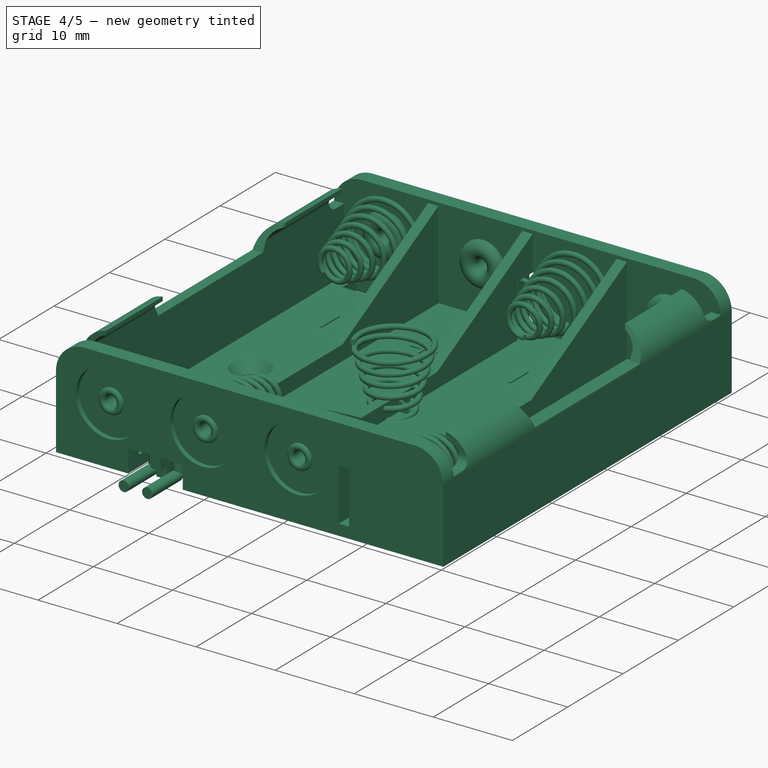
[diagram: stage 4 of 5 — iso view after this stage's code; geometry added in this stage tinted green]
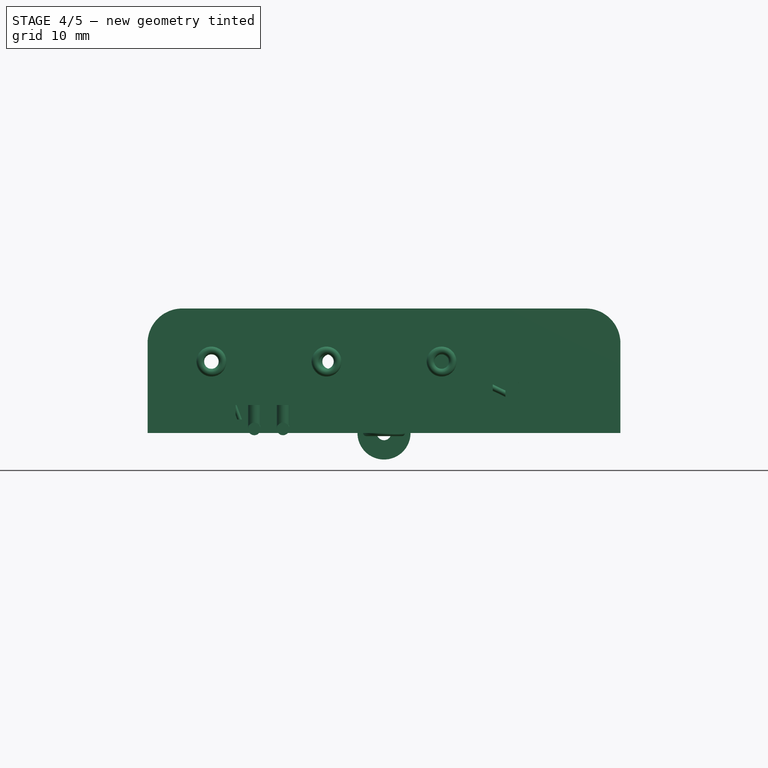
[diagram: stage 4 of 5 — front view after this stage's code; geometry added in this stage tinted green]
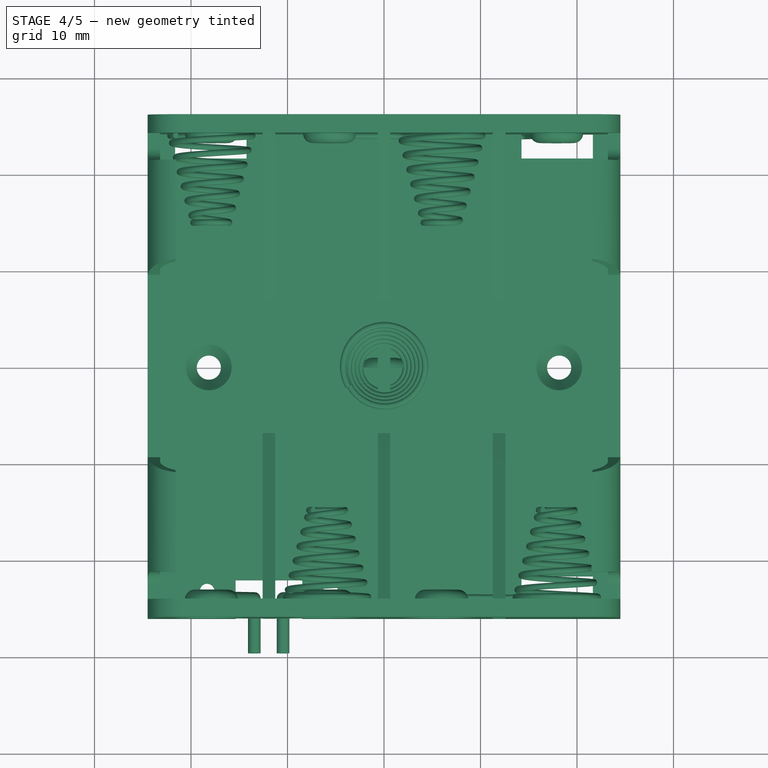
[diagram: stage 4 of 5 — top view after this stage's code; geometry added in this stage tinted green]
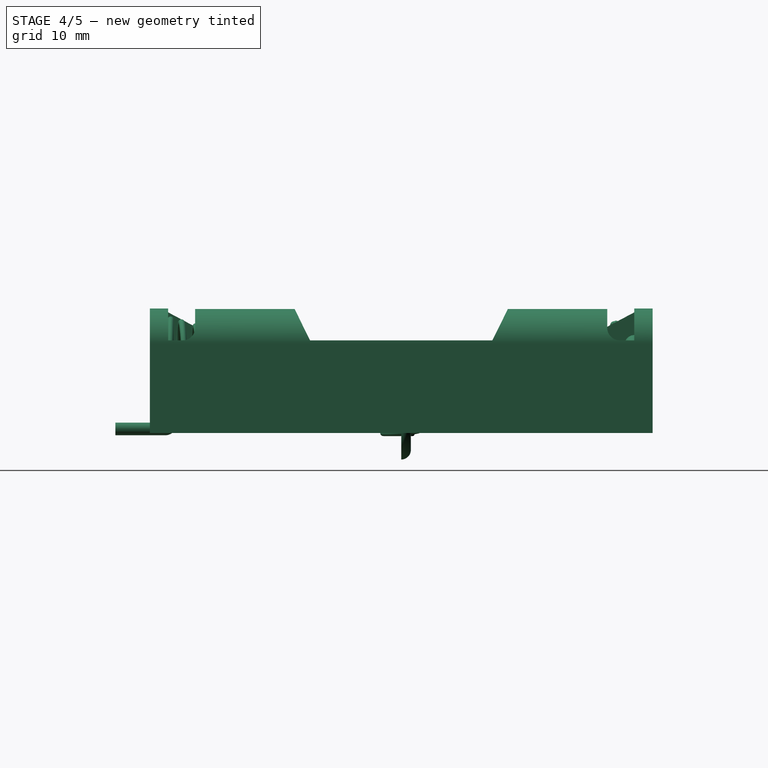
[diagram: stage 4 of 5 — right view after this stage's code; geometry added in this stage tinted green]
FEATURE [Sketcher::SketchObject] Sketch010  label="pack-6-back-circles-sketch"
  ExternalGeometry = -> [Pocket008]
  Placement = pos=(0,26.05,0) rot=(0,0.707107,0.707107;3.14159rad)
  Support = -> Pocket008 [Face32]
  sketch-geometry (9):
    g0: Circle CenterX=17.8875 CenterY=7.4 CenterZ=0 NormalX=0 NormalY=0 NormalZ=1 Radius=4.1
    g1: Circle CenterX=5.6375 CenterY=7.4 CenterZ=0 NormalX=0 NormalY=0 NormalZ=1 Radius=4.1
    g2: Circle CenterX=-17.8875 CenterY=7.4 CenterZ=0 NormalX=0 NormalY=0 NormalZ=1 Radius=4.1
    g3: LineSegment [constr] StartX=-23.2 StartY=7.4 StartZ=0 EndX=-12.575 EndY=7.4 EndZ=0
    g4: LineSegment [constr] StartX=-17.8875 StartY=7.4 StartZ=0 EndX=-17.8875 EndY=0 EndZ=0
    g5: LineSegment [constr] StartX=0 StartY=7.4 StartZ=0 EndX=11.275 EndY=7.4 EndZ=0
    g6: LineSegment [constr] StartX=5.6375 StartY=7.4 StartZ=0 EndX=5.6375 EndY=0 EndZ=0
    g7: LineSegment [constr] StartX=12.575 StartY=7.4 StartZ=0 EndX=23.2 EndY=7.4 EndZ=0
    g8: LineSegment [constr] StartX=17.8875 StartY=7.4 StartZ=0 EndX=17.8875 EndY=0 EndZ=0
  constraints (30):
    c: Equal(g2,g0)
    c: Equal(g0,g1)
    c: Radius(g0) = 4.1
    c: PointOnObject(g3,g-9)
    c: PointOnObject(g3,g-8)
    c: Horizontal(g3)
    c: PointOnObject(g2,g3)
    c: Vertical(g4)
    c: Coincident(g4,g2)
    c: PointOnObject(g4,g-10)
    c: Symmetric(g3,g3,g4)
    c: Horizontal(g5)
    c: PointOnObject(g5,g3)
    c: PointOnObject(g5,g-2)
    c: PointOnObject(g5,g-5)
    c: Vertical(g6)
    c: PointOnObject(g6,g-10)
    c: Coincident(g6,g1)
    c: PointOnObject(g1,g5)
    c: Horizontal(g7)
    c: PointOnObject(g7,g-3)
    c: PointOnObject(g7,g-4)
    c: Symmetric(g5,g5,g6)
    c: PointOnObject(g7,g5)
    c: PointOnObject(g0,g7)
    c: Vertical(g8)
    c: PointOnObject(g8,g-10)
    c: Coincident(g8,g0)
    c: Symmetric(g7,g7,g8)
    c: DistanceY(g4) = -7.4
FEATURE [PartDesign::Pocket] Pocket009  label="pack-6-back-circles"
  Length = 0.6
  Sketch = -> Sketch010
  Type = 0
FEATURE [Sketcher::SketchObject] Sketch011  label="pack-7-bottom-sketch"
  ExternalGeometry = -> [Pocket009]
  Placement = pos=(0,0,0) rot=(1,0,0;3.14159rad)
  Support = -> Pocket009 [Face67]
  sketch-geometry (4):
    g0: LineSegment StartX=-21.65 StartY=-21.65 StartZ=0 EndX=21.65 EndY=-21.65 EndZ=0
    g1: LineSegment StartX=21.65 StartY=-21.65 StartZ=0 EndX=21.65 EndY=-24.15 EndZ=0
    g2: LineSegment StartX=21.65 StartY=-24.15 StartZ=0 EndX=-21.65 EndY=-24.15 EndZ=0
    g3: LineSegment StartX=-21.65 StartY=-24.15 StartZ=0 EndX=-21.65 EndY=-21.65 EndZ=0
  constraints (12):
    c: Coincident(g0,g1)
    c: Coincident(g1,g2)
    c: Coincident(g2,g3)
    c: Coincident(g3,g0)
    c: Horizontal(g0)
    c: Horizontal(g2)
    c: Vertical(g1)
    c: Vertical(g3)
    c: Symmetric(g0,g0,g-2)
    c: PointOnObject(g2,g-4)
    c: DistanceY(g3) = 2.5
    c: DistanceX(g0) = 43.3
FEATURE [PartDesign::Pocket] Pocket010  label="pack-7-bottom"
  Length = 1.2
  Sketch = -> Sketch011
  Type = 0
FEATURE [Sketcher::SketchObject] Sketch012  label="pack-8-bottom-sketch"
  ExternalGeometry = -> [Pocket010]
  Placement = pos=(0,0,0) rot=(1,0,0;3.14159rad)
  Support = -> Pocket010 [Face67]
  sketch-geometry (12):
    g0: LineSegment StartX=14.25 StartY=-21.65 StartZ=0 EndX=21.65 EndY=-21.65 EndZ=0
    g1: LineSegment StartX=21.65 StartY=-21.65 StartZ=0 EndX=21.65 EndY=-24.15 EndZ=0
    g2: LineSegment StartX=21.65 StartY=-24.15 StartZ=0 EndX=14.25 EndY=-24.15 EndZ=0
    g3: LineSegment StartX=14.25 StartY=-24.15 StartZ=0 EndX=14.25 EndY=-21.65 EndZ=0
    g4: LineSegment StartX=-21.65 StartY=-21.65 StartZ=0 EndX=-14.25 EndY=-21.65 EndZ=0
    g5: LineSegment StartX=-14.25 StartY=-21.65 StartZ=0 EndX=-14.25 EndY=-24.15 EndZ=0
    g6: LineSegment StartX=-14.25 StartY=-24.15 StartZ=0 EndX=-21.65 EndY=-24.15 EndZ=0
    g7: LineSegment StartX=-21.65 StartY=-24.15 StartZ=0 EndX=-21.65 EndY=-21.65 EndZ=0
    g8: LineSegment StartX=14.25 StartY=24.15 StartZ=0 EndX=21.65 EndY=24.15 EndZ=0
    g9: LineSegment StartX=21.65 StartY=24.15 StartZ=0 EndX=21.65 EndY=21.65 EndZ=0
    g10: LineSegment StartX=21.65 StartY=21.65 StartZ=0 EndX=14.25 EndY=21.65 EndZ=0
    g11: LineSegment StartX=14.25 StartY=21.65 StartZ=0 EndX=14.25 EndY=24.15 EndZ=0
  constraints (33):
    c: Coincident(g0,g1)
    c: Coincident(g1,g2)
    c: Coincident(g2,g3)
    c: Coincident(g3,g0)
    c: Horizontal(g0)
    c: Horizontal(g2)
    c: Vertical(g1)
    c: Vertical(g3)
    c: Coincident(g4,g5)
    c: Coincident(g5,g6)
    c: Coincident(g6,g7)
    c: Coincident(g7,g4)
    c: Horizontal(g4)
    c: Horizontal(g6)
    c: Vertical(g5)
    c: Vertical(g7)
    c: Coincident(g8,g9)
    c: Coincident(g9,g10)
    c: Coincident(g10,g11)
    c: Coincident(g11,g8)
    c: Horizontal(g8)
    c: Horizontal(g10)
    c: Vertical(g9)
    c: Vertical(g11)
    c: Coincident(g1,g-4)
    c: Coincident(g0,g-3)
    c: Coincident(g6,g-4)
    c: Coincident(g4,g-3)
    c: Symmetric(g4,g0,g-2)
    c: DistanceX(g0) = 7.4
    c: Equal(g0,g10)
    c: Equal(g1,g9)
    c: Symmetric(g0,g10,g-1)
FEATURE [PartDesign::Pocket] Pocket011  label="pack-8-bottom"
  Length = 3
  Sketch = -> Sketch012
  Type = 0
FEATURE [Sketcher::SketchObject] Sketch013  label="pack-9-bottom-sketch"
  ExternalGeometry = -> [Pocket011]
  Placement = pos=(0,0,0) rot=(1,0,0;3.14159rad)
  Support = -> Pocket011 [Face58]
  sketch-geometry (4):
    g0: Circle CenterX=-18.325 CenterY=23.15 CenterZ=0 NormalX=0 NormalY=0 NormalZ=1 Radius=0.75
    g1: Circle CenterX=-5.525 CenterY=23.15 CenterZ=0 NormalX=0 NormalY=0 NormalZ=1 Radius=0.75
    g2: LineSegment [constr] StartX=-18.325 StartY=23.15 StartZ=0 EndX=-5.525 EndY=23.15 EndZ=0
    g3: LineSegment [constr] StartX=-11.925 StartY=26.05 StartZ=0 EndX=-11.925 EndY=23.15 EndZ=0
  constraints (11):
    c: Horizontal(g2)
    c: Coincident(g2,g0)
    c: Coincident(g2,g1)
    c: Radius(g1) = 0.75
    c: Equal(g1,g0)
    c: PointOnObject(g3,g-5)
    c: PointOnObject(g3,g2)
    c: Symmetric(g-3,g-4,g3)
    c: Symmetric(g0,g1,g3)
    c: DistanceX(g2) = 12.8
    c: DistanceY(g-3,g0) = -2.9
FEATURE [PartDesign::Pocket] Pocket012  label="pack-9-bottom"
  Length = 3
  Sketch = -> Sketch013
  Type = 0
FEATURE [Sketcher::SketchObject] Sketch014  label="pack-10-front-drills-sketch"
  ExternalGeometry = -> [Pocket012]
  Placement = pos=(0,-26.05,0) rot=(1,0,0;1.5708rad)
  Support = -> Pocket012 [Face4]
  sketch-geometry (3):
    g0: Circle CenterX=-17.8875 CenterY=7.4 CenterZ=0 NormalX=0 NormalY=0 NormalZ=1 Radius=0.75
    g1: Circle CenterX=-5.9625 CenterY=7.4 CenterZ=0 NormalX=0 NormalY=0 NormalZ=1 Radius=0.75
    g2: Circle CenterX=5.9625 CenterY=7.4 CenterZ=0 NormalX=0 NormalY=0 NormalZ=1 Radius=0.75
  constraints (6):
    c: Coincident(g0,g-3)
    c: Coincident(g1,g-4)
    c: Coincident(g2,g-5)
    c: Equal(g0,g1)
    c: Equal(g1,g2)
    c: Radius(g2) = 0.75
FEATURE [PartDesign::Pocket] Pocket013  label="pack-10-front-drills"
  Length = 3
  Sketch = -> Sketch014
  Type = 0
FEATURE [Sketcher::SketchObject] Sketch015  label="pack-11-back-drills-sketch"
  ExternalGeometry = -> [Pocket013]
  Placement = pos=(0,26.05,0) rot=(0,0.707107,0.707107;3.14159rad)
  Support = -> Pocket013 [Face33]
  sketch-geometry (3):
    g0: Circle CenterX=-17.8875 CenterY=7.4 CenterZ=0 NormalX=0 NormalY=0 NormalZ=1 Radius=0.75
    g1: Circle CenterX=5.6375 CenterY=7.4 CenterZ=0 NormalX=0 NormalY=0 NormalZ=1 Radius=0.75
    g2: Circle CenterX=17.8875 CenterY=7.4 CenterZ=0 NormalX=0 NormalY=0 NormalZ=1 Radius=0.75
  constraints (6):
    c: Coincident(g0,g-3)
    c: Coincident(g1,g-4)
    c: Coincident(g2,g-5)
    c: Equal(g2,g1)
    c: Equal(g1,g0)
    c: Radius(g2) = 0.75
FEATURE [PartDesign::Pocket] Pocket014  label="pack-11-back-drills"
  Length = 3
  Sketch = -> Sketch015
  Type = 0
FEATURE [Sketcher::SketchObject] Sketch016  label="pack-12-bottom-drills-sketch"
  ExternalGeometry = -> [Pocket014]
  Placement = pos=(0,0,0) rot=(1,0,0;3.14159rad)
  Support = -> Pocket014 [Face15]
  sketch-geometry (2):
    g0: Circle CenterX=-18.15 CenterY=0 CenterZ=0 NormalX=0 NormalY=0 NormalZ=1 Radius=1.25
    g1: Circle CenterX=18.15 CenterY=0 CenterZ=0 NormalX=0 NormalY=0 NormalZ=1 Radius=1.25
  constraints (6):
    c: PointOnObject(g0,g-1)
    c: PointOnObject(g1,g-1)
    c: Symmetric(g1,g0,g-2)
    c: Equal(g0,g1)
    c: Radius(g1) = 1.25
    c: DistanceX(g0,g-3) = -6.35
FEATURE [PartDesign::Pocket] Pocket015  label="pack-12-bottom-drills"
  Length = 3
  Sketch = -> Sketch016
  Type = 0
FEATURE [Part::Cut] Cut  label="pack-12-countersinks"
  Base = -> Pocket015
  Tool = -> Fusion001
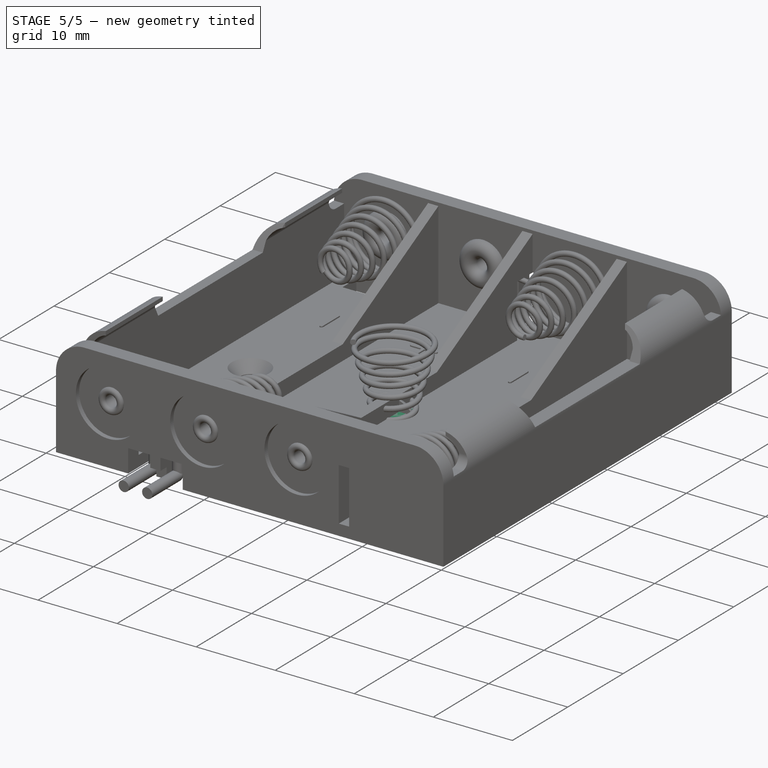
[diagram: stage 5 of 5 — iso view after this stage's code; geometry added in this stage tinted green]
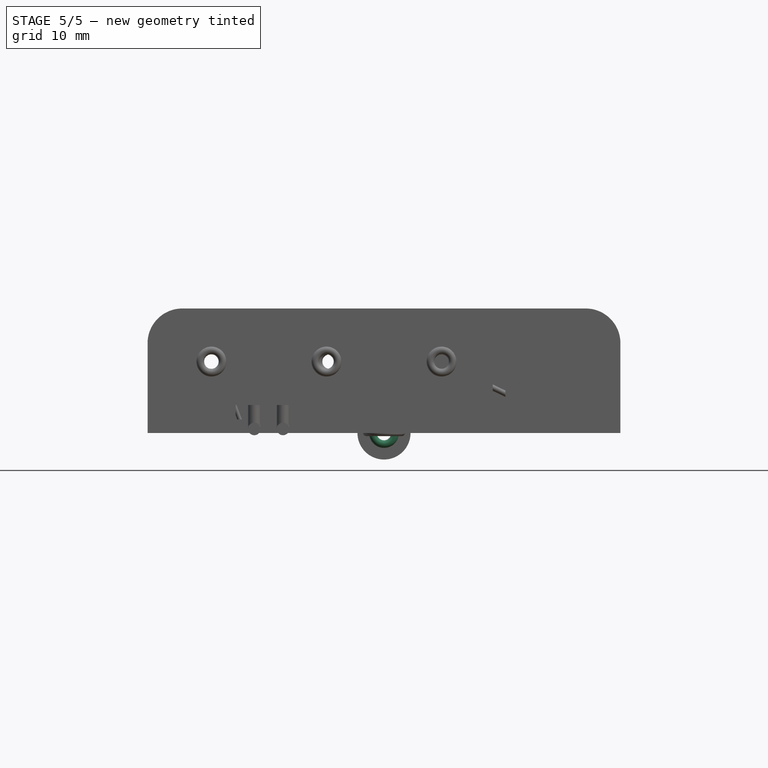
[diagram: stage 5 of 5 — front view after this stage's code; geometry added in this stage tinted green]
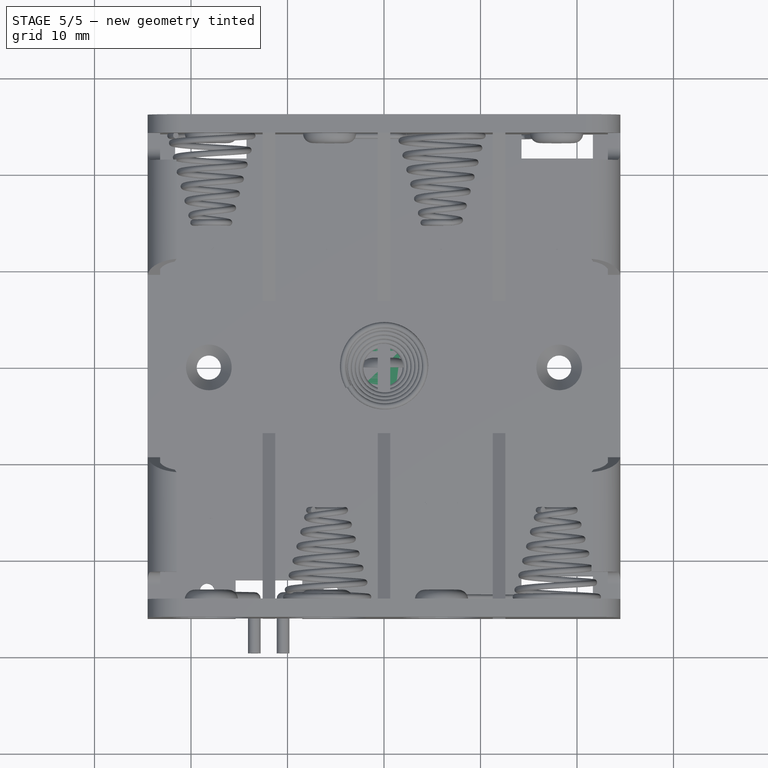
[diagram: stage 5 of 5 — top view after this stage's code; geometry added in this stage tinted green]
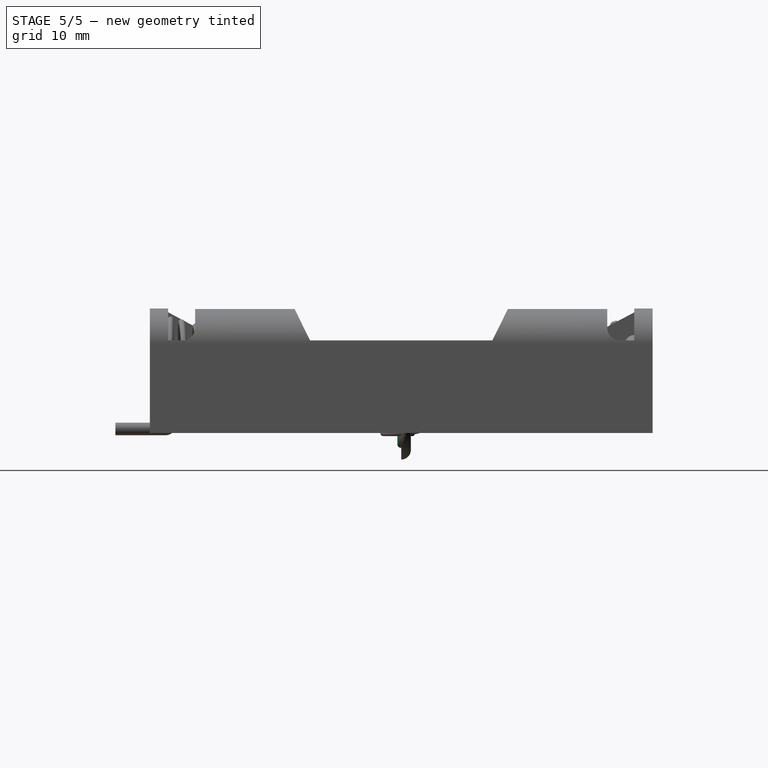
[diagram: stage 5 of 5 — right view after this stage's code; geometry added in this stage tinted green]
FEATURE [Sketcher::SketchObject] Sketch017  label="countersink-cutter-base-sketch"
  sketch-geometry (1):
    g0: Circle CenterX=0 CenterY=0 CenterZ=0 NormalX=0 NormalY=0 NormalZ=1 Radius=1.25
  constraints (2):
    c: Coincident(g0,g-1)
    c: Radius(g0) = 1.25
FEATURE [Sketcher::SketchObject] Sketch018  label="countersink-cutter-top-sketch"
  Placement = pos=(0,0,1.4) rot=(0,0,1;0rad)
  sketch-geometry (1):
    g0: Circle CenterX=0 CenterY=0 CenterZ=0 NormalX=0 NormalY=0 NormalZ=1 Radius=2.45
  constraints (2):
    c: Coincident(g0,g-1)
    c: Radius(g0) = 2.45
FEATURE [Part::Loft] Loft  label="countersink-cutter-1"
  Closed = false
  Ruled = false
  Sections = -> [Sketch017,Sketch018]
  Solid = true
FEATURE [Sketcher::SketchObject] Sketch019
  ExternalGeometry = -> [Loft]
  Placement = pos=(0,0,0) rot=(1,0,0;3.14159rad)
  Support = -> Loft [Face2]
  sketch-geometry (1):
    g0: Circle CenterX=0 CenterY=0 CenterZ=0 NormalX=0 NormalY=0 NormalZ=1 Radius=1.25
  constraints (2):
    c: Coincident(g0,g-1)
    c: Equal(g0,g-3)
FEATURE [PartDesign::Pad] Pad001  label="countersink-cutter-2"
  Length = 0.1
  Length2 = 100
  Sketch = -> Sketch019
  Type = 0
FEATURE [Sketcher::SketchObject] Sketch020  label="symbol-minus-sketch"
  sketch-geometry (6):
    g0: ArcOfCircle CenterX=-1.5 CenterY=0 CenterZ=0 NormalX=0 NormalY=0 NormalZ=1 Radius=0.2 StartAngle=1.57082 EndAngle=4.71237
    g1: ArcOfCircle CenterX=1.5 CenterY=0 CenterZ=0 NormalX=0 NormalY=0 NormalZ=1 Radius=0.2 StartAngle=4.71241 EndAngle=7.85396
    g2: LineSegment StartX=-1.5 StartY=-0.2 StartZ=0 EndX=1.5 EndY=-0.2 EndZ=0
    g3: LineSegment StartX=-1.5 StartY=0.2 StartZ=0 EndX=1.5 EndY=0.2 EndZ=0
    g4: GeomPoint [constr] X=-1.7 Y=0 Z=0
    g5: GeomPoint [constr] X=1.7 Y=0 Z=0
  constraints (18):
    c: Tangent(g0,g2)
    c: Tangent(g0,g3)
    c: Tangent(g1,g2)
    c: Tangent(g1,g3)
    c: Coincident(g0,g3)
    c: Coincident(g0,g2)
    c: Coincident(g2,g1)
    c: Coincident(g3,g1)
    c: Horizontal(g2)
    c: Equal(g0,g1)
    c: PointOnObject(g0,g-1)
    c: Symmetric(g0,g1,g-2)
    c: PointOnObject(g4,g0)
    c: PointOnObject(g4,g-1)
    c: PointOnObject(g5,g1)
    c: PointOnObject(g5,g-1)
    c: Radius(g0) = 0.2
    c: DistanceX(g4,g5) = 3.4
FEATURE [PartDesign::Pad] Pad001003  label="symbol-minus"
  Length = 0.15
  Length2 = 100
  Sketch = -> Sketch020
  Type = 0
FEATURE [Sketcher::SketchObject] Sketch021  label="symbol-plus-sketch"
  sketch-geometry (12):
    g0: ArcOfCircle CenterX=0 CenterY=1.5 CenterZ=0 NormalX=0 NormalY=0 NormalZ=1 Radius=0.2 StartAngle=6.28319 EndAngle=9.42478
    g1: ArcOfCircle CenterX=0 CenterY=-1.5 CenterZ=0 NormalX=0 NormalY=0 NormalZ=1 Radius=0.2 StartAngle=3.14159 EndAngle=6.28319
    g2: LineSegment StartX=-0.2 StartY=1.5 StartZ=0 EndX=-0.2 EndY=0.2 EndZ=0
    g3: LineSegment StartX=0.2 StartY=1.5 StartZ=0 EndX=0.2 EndY=0.2 EndZ=0
    g4: ArcOfCircle CenterX=-1.5 CenterY=0 CenterZ=0 NormalX=0 NormalY=0 NormalZ=1 Radius=0.2 StartAngle=1.57082 EndAngle=4.71237
    g5: ArcOfCircle CenterX=1.5 CenterY=0 CenterZ=0 NormalX=0 NormalY=0 NormalZ=1 Radius=0.2 StartAngle=4.71241 EndAngle=7.85396
    g6: LineSegment StartX=-1.5 StartY=-0.2 StartZ=0 EndX=-0.2 EndY=-0.2 EndZ=0
    g7: LineSegment StartX=-1.5 StartY=0.2 StartZ=0 EndX=-0.2 EndY=0.2 EndZ=0
    g8: LineSegment StartX=-0.2 StartY=-0.2 StartZ=0 EndX=-0.2 EndY=-1.5 EndZ=0
    g9: LineSegment StartX=0.2 StartY=0.2 StartZ=0 EndX=1.5 EndY=0.2 EndZ=0
    g10: LineSegment StartX=0.2 StartY=-0.2 StartZ=0 EndX=0.2 EndY=-1.5 EndZ=0
    g11: LineSegment StartX=0.2 StartY=-0.2 StartZ=0 EndX=1.5 EndY=-0.2 EndZ=0
  constraints (36):
    c: Tangent(g0,g2)
    c: Tangent(g0,g3)
    c: Tangent(g1,g2)
    c: Tangent(g1,g3)
    c: Coincident(g0,g3)
    c: Coincident(g0,g2)
    c: Coincident(g8,g1)
    c: Coincident(g10,g1)
    c: Vertical(g2)
    c: Equal(g0,g1)
    c: PointOnObject(g0,g-2)
    c: Symmetric(g0,g1,g-1)
    c: Tangent(g4,g6)
    c: Tangent(g4,g7)
    c: Tangent(g5,g6)
    c: Tangent(g5,g7)
    c: Coincident(g4,g7)
    c: Coincident(g4,g6)
    c: Coincident(g11,g5)
    c: Coincident(g9,g5)
    c: Horizontal(g6)
    c: Equal(g4,g5)
    c: Symmetric(g4,g5,g-2)
    c: PointOnObject(g4,g-1)
    c: Radius(g4) = 0.2
    c: Equal(g0,g4)
    c: Tangent(g2,g8)
    c: Coincident(g7,g2)
    c: Tangent(g7,g9)
    c: Coincident(g3,g9)
    c: Tangent(g3,g10)
    c: Coincident(g6,g8)
    c: Coincident(g11,g10)
    c: Tangent(g6,g11)
    c: Equal(g7,g2)
    c: DistanceX(g4,g5) = 3
FEATURE [PartDesign::Pad] Pad001004  label="symbol-plus"
  Length = 0.15
  Length2 = 100
  Sketch = -> Sketch021
  Type = 0
FEATURE [Sketcher::SketchObject] Sketch022  label="minus-anchor-sketch"
  Placement = pos=(0,0,0) rot=(1,0,0;3.14159rad)
  Support = -> Pad001003 [Face5]
  sketch-geometry (1):
    g0: Circle CenterX=0 CenterY=0 CenterZ=0 NormalX=0 NormalY=0 NormalZ=1 Radius=0.1
  constraints (2):
    c: Coincident(g0,g-1)
    c: Radius(g0) = 0.1
FEATURE [PartDesign::Pocket] Pocket016  label="symbol-minus-with-anchor"
  Length = 0.05
  Sketch = -> Sketch022
  Type = 0
FEATURE [Sketcher::SketchObject] Sketch023  label="plus-anchor-sketch"
  Placement = pos=(0,0,0) rot=(1,0,0;3.14159rad)
  Support = -> Pad001004 [Face13]
  sketch-geometry (1):
    g0: Circle CenterX=0 CenterY=0 CenterZ=0 NormalX=0 NormalY=0 NormalZ=1 Radius=0.1
  constraints (2):
    c: Coincident(g0,g-1)
    c: Radius(g0) = 0.1
FEATURE [PartDesign::Pocket] Pocket017  label="symbol-plus-with-anchor"
  Length = 0.05
  Sketch = -> Sketch023
  Type = 0
FEATURE [App::DocumentObjectGroup] Group001  label="symbols-minus-plus-src"
  Group = -> [Pad001004,Pad001003,Pocket016,Pocket017]
FEATURE [Part::Feature] Pocket016001  label="symbol-minus-1"
  Placement = pos=(-17.8875,13.95,1.4) rot=(0,0,1;1.5708rad)
  shape: bbox 0.4 x 3.4 x 0.15 mm, 8 faces (baked)
FEATURE [Part::Feature] Pocket017001  label="symbol-plus-1"
  Placement = pos=(-5.9625,13.95,1.4) rot=(0,0,1;0rad)
  shape: bbox 3.4 x 3.4 x 0.15 mm, 16 faces (baked)
FEATURE [Sketcher::SketchObject] Sketch024  label="pack-13-symbols-anchors-sketch"
  ExternalGeometry = -> [Cut]
  Placement = pos=(0,0,1.4) rot=(0,0,1;0rad)
  Support = -> Cut [Face11]
  sketch-geometry (16):
    g0: LineSegment [constr] StartX=-17.8875 StartY=24.15 StartZ=0 EndX=-17.8875 EndY=13.95 EndZ=0
    g1: LineSegment [constr] StartX=-23.2 StartY=24.15 StartZ=0 EndX=23.2 EndY=24.15 EndZ=0
    g2: LineSegment [constr] StartX=-17.8875 StartY=13.95 StartZ=0 EndX=23.2 EndY=13.95 EndZ=0
    g3: LineSegment [constr] StartX=-5.9625 StartY=24.15 StartZ=0 EndX=-5.9625 EndY=13.95 EndZ=0
    g4: LineSegment [constr] StartX=-0.65 StartY=24.15 StartZ=0 EndX=-0.65 EndY=21.35 EndZ=0
    g5: LineSegment [constr] StartX=0.65 StartY=21.35 StartZ=0 EndX=0.65 EndY=24.15 EndZ=0
    g6: Circle CenterX=-17.8875 CenterY=13.95 CenterZ=0 NormalX=0 NormalY=0 NormalZ=1 Radius=0.1
    g7: LineSegment [constr] StartX=5.9625 StartY=24.15 StartZ=0 EndX=5.9625 EndY=13.95 EndZ=0
    g8: LineSegment [constr] StartX=17.8875 StartY=24.15 StartZ=0 EndX=17.8875 EndY=13.95 EndZ=0
    g9: Circle CenterX=-5.9625 CenterY=13.95 CenterZ=0 NormalX=0 NormalY=0 NormalZ=1 Radius=0.1
    g10: Circle CenterX=5.9625 CenterY=13.95 CenterZ=0 NormalX=0 NormalY=0 NormalZ=1 Radius=0.1
    g11: Circle CenterX=17.8875 CenterY=13.95 CenterZ=0 NormalX=0 NormalY=0 NormalZ=1 Radius=0.1
    g12: Circle CenterX=-17.8875 CenterY=-13.95 CenterZ=0 NormalX=0 NormalY=0 NormalZ=1 Radius=0.1
    g13: Circle CenterX=-5.9625 CenterY=-13.95 CenterZ=0 NormalX=0 NormalY=0 NormalZ=1 Radius=0.1
    g14: Circle CenterX=5.9625 CenterY=-13.95 CenterZ=0 NormalX=0 NormalY=0 NormalZ=1 Radius=0.1
    g15: Circle CenterX=17.8875 CenterY=-13.95 CenterZ=0 NormalX=0 NormalY=0 NormalZ=1 Radius=0.1
  constraints (43):
    c: Vertical(g0)
    c: Symmetric(g-9,g-10,g0)
    c: Coincident(g1,g-9)
    c: Coincident(g1,g-8)
    c: PointOnObject(g0,g1)
    c: DistanceY(g0) = -10.2
    c: Horizontal(g2)
    c: Coincident(g2,g0)
    c: PointOnObject(g2,g-8)
    c: Vertical(g3)
    c: PointOnObject(g3,g1)
    c: Coincident(g4,g-4)
    c: Vertical(g4)
    c: PointOnObject(g4,g1)
    c: Coincident(g5,g-5)
    c: PointOnObject(g5,g1)
    c: Vertical(g5)
    c: Symmetric(g-3,g4,g3)
    c: PointOnObject(g3,g2)
    c: Coincident(g6,g0)
    c: Vertical(g7)
    c: PointOnObject(g7,g1)
    c: PointOnObject(g7,g2)
    c: Symmetric(g5,g-6,g7)
    c: Vertical(g8)
    c: PointOnObject(g8,g1)
    c: PointOnObject(g8,g2)
    c: Symmetric(g-7,g1,g8)
    c: Coincident(g9,g3)
    c: Coincident(g10,g7)
    c: Coincident(g11,g8)
    c: Equal(g9,g10)
    c: Equal(g10,g6)
    c: Equal(g6,g11)
    c: Radius(g6) = 0.1
    c: Symmetric(g12,g0,g-1)
    c: Symmetric(g13,g3,g-1)
    c: Symmetric(g14,g7,g-1)
    c: Symmetric(g15,g8,g-1)
    c: Equal(g12,g14)
    c: Equal(g14,g13)
    c: Equal(g13,g15)
    c: Equal(g15,g6)
FEATURE [PartDesign::Pocket] Pocket017002  label="pack-13-symbols-anchors"
  Length = 0.05
  Sketch = -> Sketch024
  Type = 0
FEATURE [Part::Feature] Pocket016001001  label="symbol-minus-002"
  Placement = pos=(-5.9625,-13.95,1.4) rot=(0,0,1;1.5708rad)
  shape: bbox 0.4 x 3.4 x 0.15 mm, 8 faces (baked)
FEATURE [Part::Feature] Pocket016001002  label="symbol-minus-003"
  Placement = pos=(17.8875,-13.95,1.4) rot=(0,0,1;1.5708rad)
  shape: bbox 0.4 x 3.4 x 0.15 mm, 8 faces (baked)
FEATURE [Part::Feature] Pocket016001003  label="symbol-minus-004"
  Placement = pos=(5.9625,13.95,1.4) rot=(0,0,1;1.5708rad)
  shape: bbox 0.4 x 3.4 x 0.15 mm, 8 faces (baked)
FEATURE [Part::Feature] Pocket017001001  label="symbol-plus-002"
  Placement = pos=(5.9625,-13.95,1.4) rot=(0,0,1;0rad)
  shape: bbox 3.4 x 3.4 x 0.15 mm, 16 faces (baked)
FEATURE [Part::Feature] Pocket017001002  label="symbol-plus-003"
  Placement = pos=(-17.8875,-13.95,1.4) rot=(0,0,1;0rad)
  shape: bbox 3.4 x 3.4 x 0.15 mm, 16 faces (baked)
FEATURE [Part::Feature] Pocket017001003  label="symbol-plus-004"
  Placement = pos=(17.8875,13.95,1.4) rot=(0,0,1;0rad)
  shape: bbox 3.4 x 3.4 x 0.15 mm, 16 faces (baked)
FEATURE [Part::MultiFuse] Fusion002  label="pack-13-symbols"
  Shapes = -> [Pocket016001,Pocket017001,Pocket016001001,Pocket016001002,Pocket016001003,Pocket017001001,Pocket017001002,Pocket017001003,Pocket017002]
FEATURE [Sketcher::SketchObject] Sketch025  label="back-contact-sketch"
  Placement = pos=(0,0,0) rot=(1,0,0;3.14159rad)
  sketch-geometry (2):
    g0: ArcOfCircle CenterX=1.15 CenterY=0 CenterZ=0 NormalX=0 NormalY=0 NormalZ=1 Radius=0.4 StartAngle=0 EndAngle=3.14159
    g1: LineSegment StartX=0.75 StartY=0 StartZ=0 EndX=1.55 EndY=0 EndZ=0
  constraints (8):
    c: PointOnObject(g0,g-1)
    c: PointOnObject(g0,g-1)
    c: Horizontal(g1)
    c: Coincident(g1,g0)
    c: Coincident(g1,g0)
    c: Radius(g0) = 0.4
    c: PointOnObject(g0,g-1)
    c: DistanceX(g-1,g0) = 0.75
FEATURE [PartDesign::Revolution] Revolution  label="back-contact"
  Angle = 360
  Axis = (0,-1,0)
  Base = (0,0,0)
  Placement = pos=(0,0,0) rot=(1,0,0;3.14159rad)
  ReferenceAxis = -> Sketch025 [V_Axis]
  Reversed = true
  Sketch = -> Sketch025
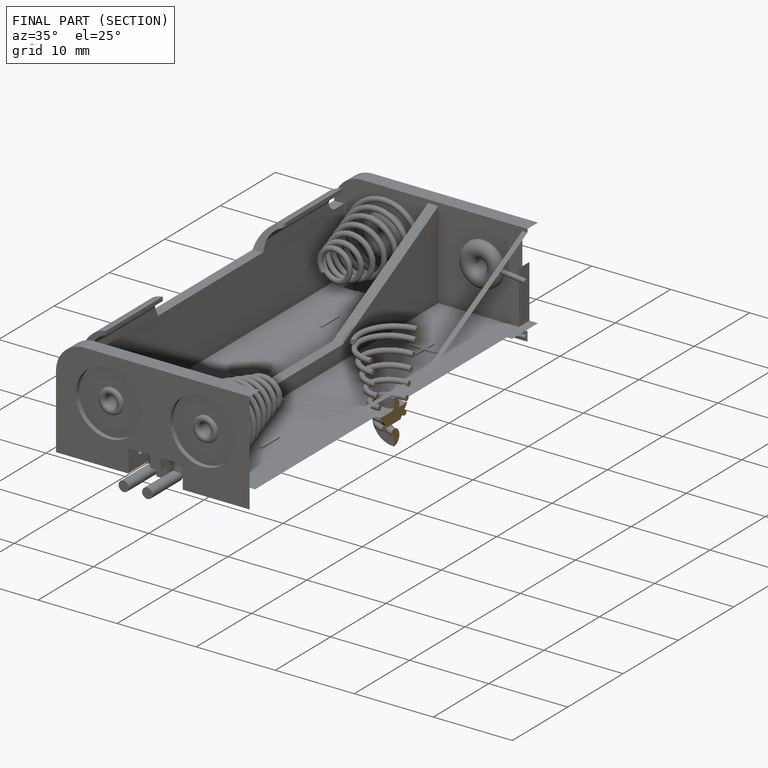
[diagram: finished part — half-section view (interior)]
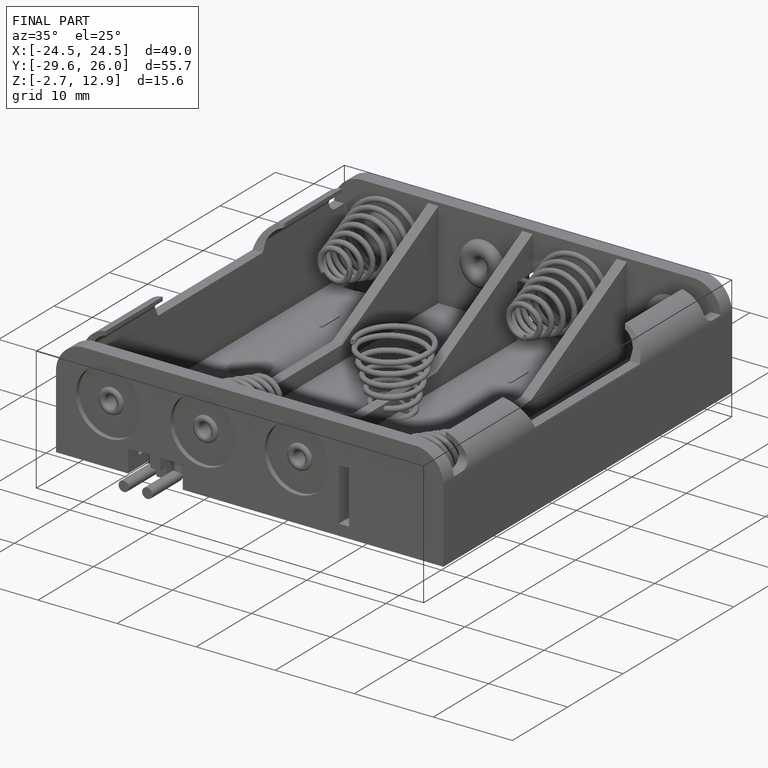
[diagram: finished part — iso view with bounding-box wireframe]
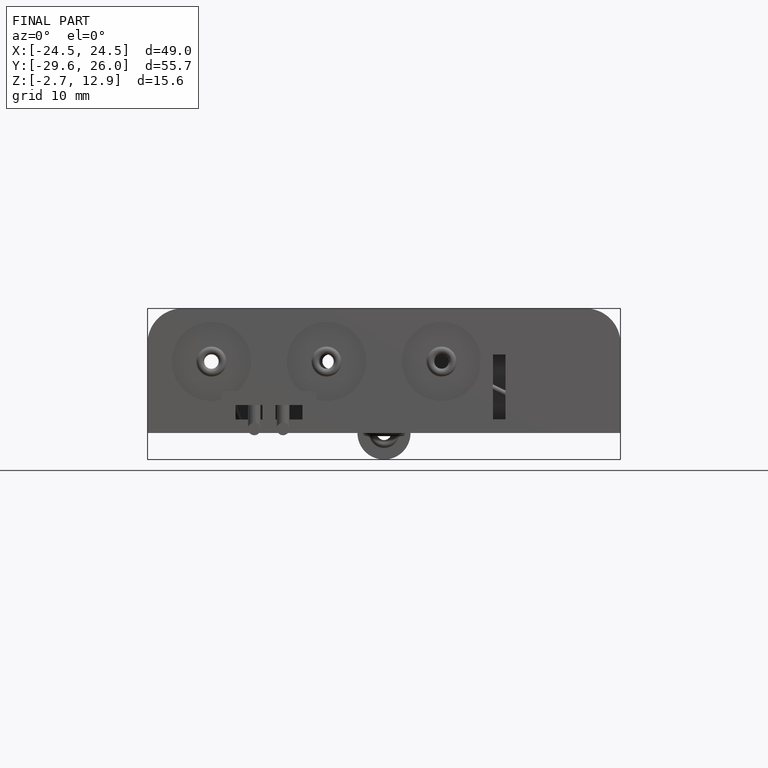
[diagram: finished part — front view with bounding-box wireframe]
